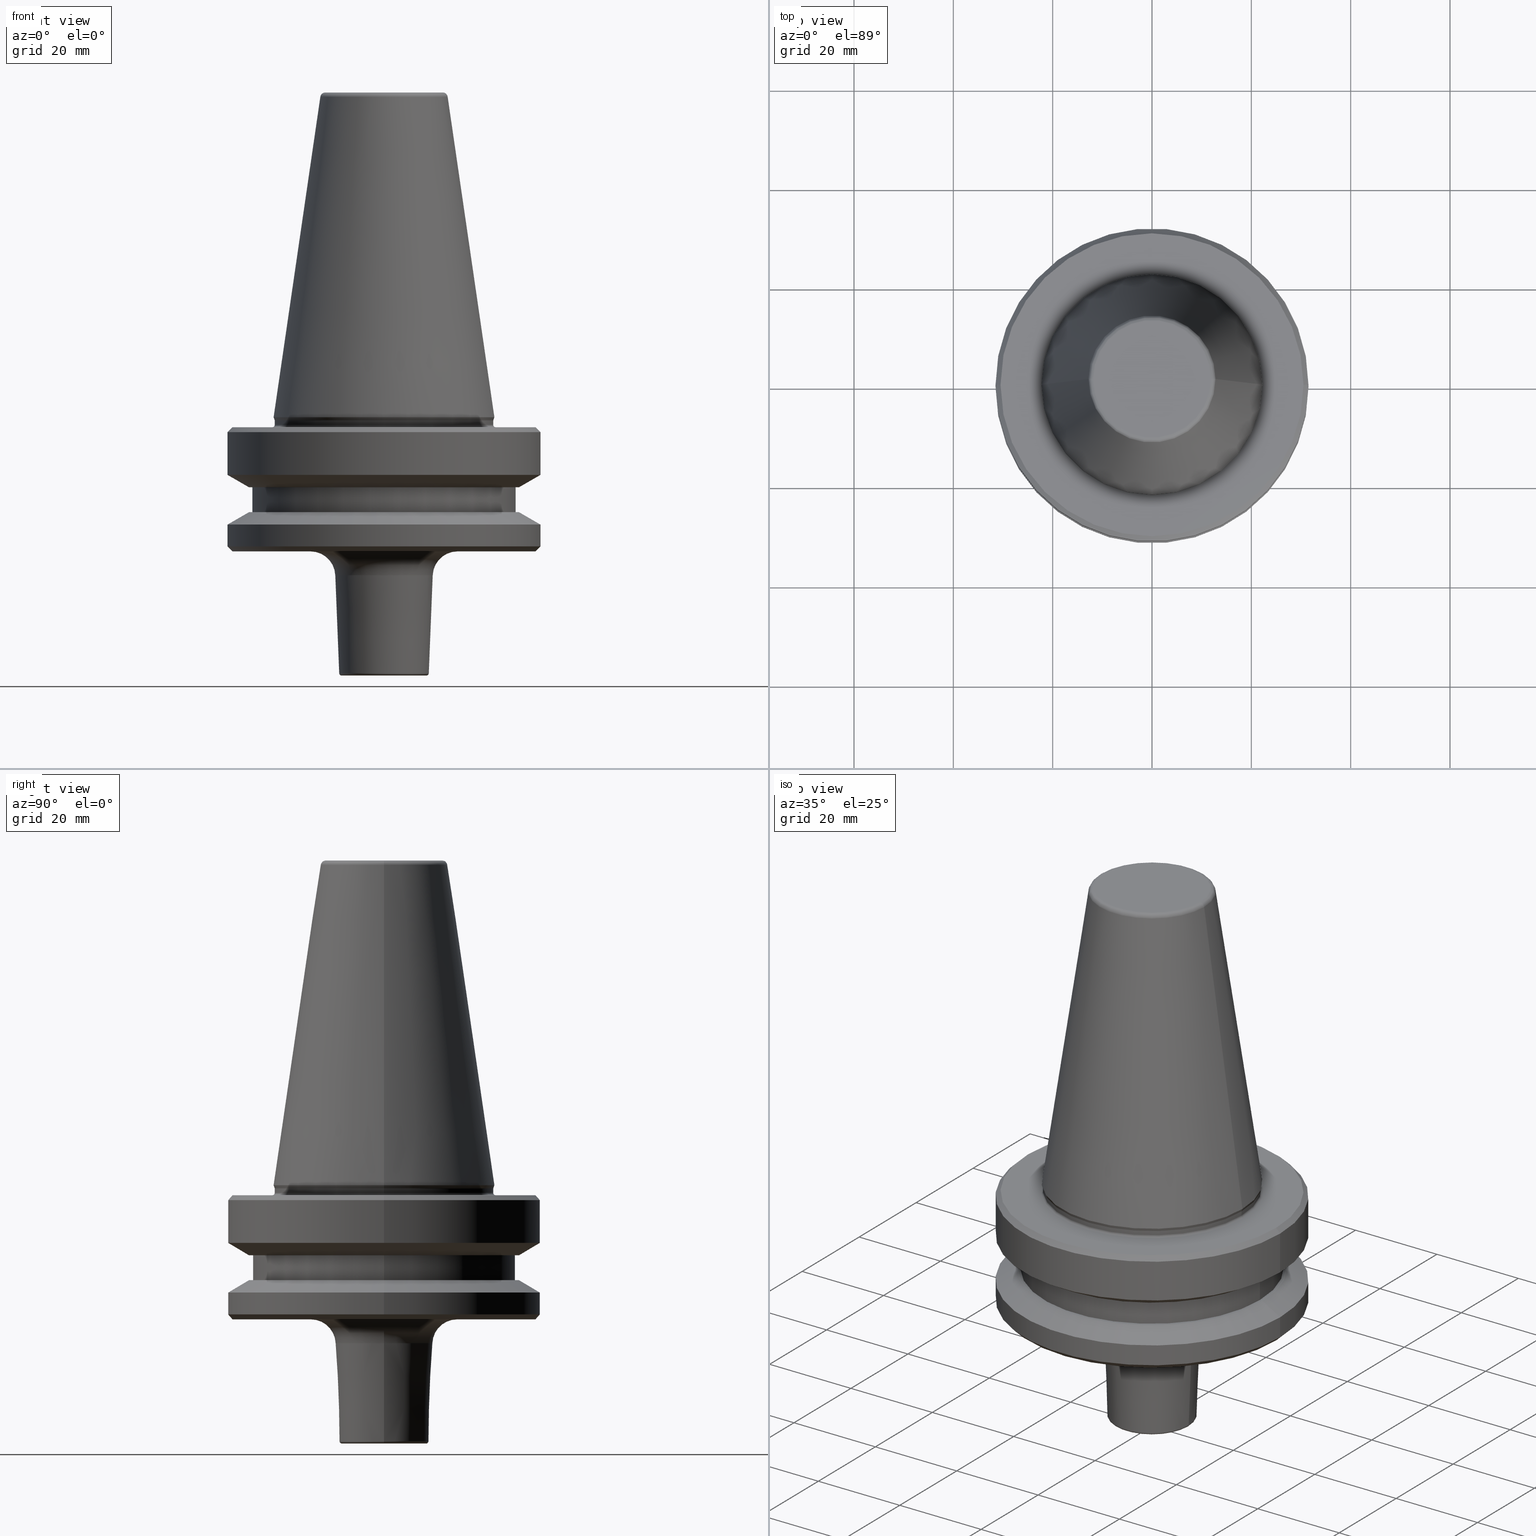
[diagram: canonical four-view strip — front | top / right | iso, engineering-drawing reading convention]
A machine part, canonical four-view strip (front | top / right | iso — engineering-drawing reading convention). The complete STEP part file that produces these views, byte-faithful:
ISO-10303-21;
HEADER;
FILE_DESCRIPTION (( 'STEP AP203' ),
    '1' );
FILE_NAME ('BT40 MCA10 025 AD+B-2.5G 25000 SL.STEP',
    '2019-05-24T09:56:07',
    ( '' ),
    ( '' ),
    'SwSTEP 2.0',
    'SolidWorks 2014',
    '' );
FILE_SCHEMA (( 'CONFIG_CONTROL_DESIGN' ));
ENDSEC;

DATA;
#1 = EDGE_CURVE ( 'NONE', #89, #408, #754, .T. ) ;
#2 = CARTESIAN_POINT ( 'NONE',  ( 0.0000000000000000000, 0.0000000000000000000, -84.50000000000068200 ) ) ;
#3 = CARTESIAN_POINT ( 'NONE',  ( 0.0000000000000000000, 0.0000000000000000000, -79.50000000000012800 ) ) ;
#4 = EDGE_LOOP ( 'NONE', ( #456, #503, #143, #786 ) ) ;
#5 = EDGE_LOOP ( 'NONE', ( #293, #224 ) ) ;
#6 = AXIS2_PLACEMENT_3D ( 'NONE', #3, #146, #809 ) ;
#7 = ORIENTED_EDGE ( 'NONE', *, *, #352, .T. ) ;
#8 = DIRECTION ( 'NONE',  ( -0.0000000000000000000, -0.0000000000000000000, 1.000000000000000000 ) ) ;
#9 = COORDINATED_UNIVERSAL_TIME_OFFSET ( 5, 30, .AHEAD. ) ;
#10 = ORIENTED_EDGE ( 'NONE', *, *, #770, .F. ) ;
#11 = ORIENTED_EDGE ( 'NONE', *, *, #407, .T. ) ;
#12 = DIRECTION ( 'NONE',  ( 0.0000000000000000000, 0.0000000000000000000, -1.000000000000000000 ) ) ;
#13 = DIRECTION ( 'NONE',  ( 0.03996803834887197700, 0.0000000000000000000, 0.9992009587217894900 ) ) ;
#14 = CC_DESIGN_PERSON_AND_ORGANIZATION_ASSIGNMENT ( #563, #570, ( #846 ) ) ;
#15 = CARTESIAN_POINT ( 'NONE',  ( 14.80399840127872000, 0.0000000000000000000, -92.40000000000806300 ) ) ;
#16 = FACE_OUTER_BOUND ( 'NONE', #4, .T. ) ;
#17 = CONICAL_SURFACE ( 'NONE', #365, 12.81220206925736900, 0.1448138077623198300 ) ;
#18 = EDGE_CURVE ( 'NONE', #368, #406, #124, .T. ) ;
#19 = SHAPE_DEFINITION_REPRESENTATION ( #638, #602 ) ;
#20 = APPLICATION_CONTEXT ( 'configuration controlled 3d designs of mechanical parts and assemblies' ) ;
#21 = CARTESIAN_POINT ( 'NONE',  ( 30.49999999999241900, 0.0000000000000000000, -92.40000000000803500 ) ) ;
#22 = VECTOR ( 'NONE', #291, 1000.000000000000000 ) ;
#23 = CIRCLE ( 'NONE', #759, 22.02412295168554100 ) ;
#24 = AXIS2_PLACEMENT_3D ( 'NONE', #169, #218, #373 ) ;
#25 = DIRECTION ( 'NONE',  ( -1.000000000000000000, 0.0000000000000000000, -0.0000000000000000000 ) ) ;
#26 = DIRECTION ( 'NONE',  ( 1.000000000000000000, 0.0000000000000000000, 0.0000000000000000000 ) ) ;
#27 = CARTESIAN_POINT ( 'NONE',  ( 22.02412295168553100, 0.0000000000000000000, -65.95190515433003500 ) ) ;
#28 = CARTESIAN_POINT ( 'NONE',  ( 0.0000000000000000000, 0.0000000000000000000, -65.40000000000057400 ) ) ;
#29 = CARTESIAN_POINT ( 'NONE',  ( 0.0000000000000000000, 0.0000000000000000000, -67.40000000000034700 ) ) ;
#30 = VERTEX_POINT ( 'NONE', #804 ) ;
#31 = CARTESIAN_POINT ( 'NONE',  ( 9.019200639233005700, 0.0000000000000000000, -116.9199840191827900 ) ) ;
#32 = ORIENTED_EDGE ( 'NONE', *, *, #415, .F. ) ;
#33 = CARTESIAN_POINT ( 'NONE',  ( 0.0000000000000000000, 0.0000000000000000000, -4.440892098500626200E-013 ) ) ;
#34 = LOCAL_TIME ( 15, 26, 7.000000000000000000, #250 ) ;
#35 = AXIS2_PLACEMENT_3D ( 'NONE', #204, #913, #656 ) ;
#36 = SECURITY_CLASSIFICATION_LEVEL ( 'unclassified' ) ;
#37 = DIRECTION ( 'NONE',  ( -0.0000000000000000000, -0.0000000000000000000, 1.000000000000000000 ) ) ;
#38 = ORIENTED_EDGE ( 'NONE', *, *, #589, .T. ) ;
#39 = ORIENTED_EDGE ( 'NONE', *, *, #954, .F. ) ;
#40 = DIRECTION ( 'NONE',  ( -0.0000000000000000000, -0.0000000000000000000, 1.000000000000000000 ) ) ;
#41 = CONICAL_SURFACE ( 'NONE', #249, 31.50000000000008500, 1.047197551196587000 ) ;
#42 = AXIS2_PLACEMENT_3D ( 'NONE', #223, #450, #956 ) ;
#43 = FACE_OUTER_BOUND ( 'NONE', #616, .T. ) ;
#44 = CARTESIAN_POINT ( 'NONE',  ( -9.019200639233005700, 1.104533519370446200E-015, -116.9199840191827900 ) ) ;
#45 = CIRCLE ( 'NONE', #35, 31.50000000000008500 ) ;
#46 = EDGE_CURVE ( 'NONE', #481, #147, #983, .T. ) ;
#47 = EDGE_CURVE ( 'NONE', #529, #723, #962, .T. ) ;
#48 = DIRECTION ( 'NONE',  ( -0.7071067811865487900, 8.659560562354948900E-017, 0.7071067811865463500 ) ) ;
#49 = LINE ( 'NONE', #930, #22 ) ;
#50 = LINE ( 'NONE', #435, #881 ) ;
#51 = ORIENTED_EDGE ( 'NONE', *, *, #954, .T. ) ;
#52 = CARTESIAN_POINT ( 'NONE',  ( 22.00000000000002100, 0.0000000000000000000, -66.08871321165987900 ) ) ;
#53 = ADVANCED_FACE ( 'NONE', ( #510 ), #485, .T. ) ;
#54 = EDGE_CURVE ( 'NONE', #30, #421, #706, .T. ) ;
#55 = CARTESIAN_POINT ( 'NONE',  ( 22.00000000000002100, 0.0000000000000000000, 6.357346922996331500 ) ) ;
#56 = DIRECTION ( 'NONE',  ( 1.000000000000000000, 0.0000000000000000000, 0.0000000000000000000 ) ) ;
#57 = AXIS2_PLACEMENT_3D ( 'NONE', #77, #556, #726 ) ;
#58 = ORIENTED_EDGE ( 'NONE', *, *, #46, .F. ) ;
#59 = ORIENTED_EDGE ( 'NONE', *, *, #905, .T. ) ;
#60 = ORGANIZATION ( 'UNSPECIFIED', 'UNSPECIFIED', '' ) ;
#61 = CARTESIAN_POINT ( 'NONE',  ( -31.50000000000008500, 3.857637417314172900E-015, -76.99985799368391800 ) ) ;
#62 = AXIS2_PLACEMENT_3D ( 'NONE', #283, #37, #817 ) ;
#63 = DIRECTION ( 'NONE',  ( -0.0000000000000000000, -0.0000000000000000000, 1.000000000000000000 ) ) ;
#64 = DIRECTION ( 'NONE',  ( 1.000000000000000000, 0.0000000000000000000, 0.0000000000000000000 ) ) ;
#65 = EDGE_LOOP ( 'NONE', ( #860, #228, #313, #737 ) ) ;
#66 = ORIENTED_EDGE ( 'NONE', *, *, #415, .T. ) ;
#67 = DIRECTION ( 'NONE',  ( -0.0000000000000000000, -0.0000000000000000000, 1.000000000000000000 ) ) ;
#68 = EDGE_LOOP ( 'NONE', ( #994, #814, #76, #372 ) ) ;
#69 = EDGE_CURVE ( 'NONE', #1013, #590, #328, .T. ) ;
#70 = CIRCLE ( 'NONE', #895, 0.9999999999999696900 ) ;
#71 = CARTESIAN_POINT ( 'NONE',  ( 30.49999999999997200, 3.735172737399423600E-015, -67.40000000000034700 ) ) ;
#72 = CIRCLE ( 'NONE', #867, 0.4999999999999449300 ) ;
#73 = SECURITY_CLASSIFICATION ( '', '', #36 ) ;
#74 = ADVANCED_FACE ( 'NONE', ( #931 ), #41, .T. ) ;
#75 = TOROIDAL_SURFACE ( 'NONE', #989, 22.49999999999996400, 0.4999999999999449300 ) ;
#76 = ORIENTED_EDGE ( 'NONE', *, *, #940, .T. ) ;
#77 = CARTESIAN_POINT ( 'NONE',  ( 22.49999999999996400, 0.0000000000000000000, -66.90000000000040400 ) ) ;
#78 = DIRECTION ( 'NONE',  ( 0.0000000000000000000, 0.0000000000000000000, -1.000000000000000000 ) ) ;
#79 = AXIS2_PLACEMENT_3D ( 'NONE', #892, #619, #943 ) ;
#80 = DIRECTION ( 'NONE',  ( 1.000000000000000000, 0.0000000000000000000, 0.0000000000000000000 ) ) ;
#81 = DIRECTION ( 'NONE',  ( 1.000000000000000000, 0.0000000000000000000, 0.0000000000000000000 ) ) ;
#82 = EDGE_LOOP ( 'NONE', ( #127, #499, #193, #400 ) ) ;
#83 = VERTEX_POINT ( 'NONE', #21 ) ;
#84 = CARTESIAN_POINT ( 'NONE',  ( 0.0000000000000000000, 0.0000000000000000000, -84.50000000000068200 ) ) ;
#85 = ORIENTED_EDGE ( 'NONE', *, *, #90, .F. ) ;
#86 = LINE ( 'NONE', #647, #110 ) ;
#87 = CARTESIAN_POINT ( 'NONE',  ( 0.0000000000000000000, 0.0000000000000000000, -116.9199840191827900 ) ) ;
#88 = EDGE_LOOP ( 'NONE', ( #582, #672 ) ) ;
#89 = VERTEX_POINT ( 'NONE', #234 ) ;
#90 = EDGE_CURVE ( 'NONE', #590, #477, #256, .T. ) ;
#91 = ORIENTED_EDGE ( 'NONE', *, *, #494, .T. ) ;
#92 = VERTEX_POINT ( 'NONE', #489 ) ;
#93 = AXIS2_PLACEMENT_3D ( 'NONE', #843, #496, #25 ) ;
#94 = ORIENTED_EDGE ( 'NONE', *, *, #350, .T. ) ;
#95 = CARTESIAN_POINT ( 'NONE',  ( 0.0000000000000000000, 0.0000000000000000000, -92.40000000000806300 ) ) ;
#96 = DIRECTION ( 'NONE',  ( 1.000000000000000000, 0.0000000000000000000, 0.0000000000000000000 ) ) ;
#97 = ADVANCED_FACE ( 'NONE', ( #459 ), #438, .T. ) ;
#98 = FACE_OUTER_BOUND ( 'NONE', #502, .T. ) ;
#99 = EDGE_CURVE ( 'NONE', #1015, #475, #649, .T. ) ;
#100 = DIRECTION ( 'NONE',  ( -0.0000000000000000000, -0.0000000000000000000, 1.000000000000000000 ) ) ;
#101 = VECTOR ( 'NONE', #1004, 1000.000000000000000 ) ;
#102 = AXIS2_PLACEMENT_3D ( 'NONE', #342, #888, #64 ) ;
#103 = FACE_OUTER_BOUND ( 'NONE', #173, .T. ) ;
#104 = APPROVAL_STATUS ( 'not_yet_approved' ) ;
#105 = APPROVAL_DATE_TIME ( #314, #241 ) ;
#106 = APPLICATION_PROTOCOL_DEFINITION ( 'international standard', 'config_control_design', 1994, #20 ) ;
#107 = DIRECTION ( 'NONE',  ( 1.000000000000000000, 0.0000000000000000000, 0.0000000000000000000 ) ) ;
#108 = DIRECTION ( 'NONE',  ( -0.0000000000000000000, -0.0000000000000000000, 1.000000000000000000 ) ) ;
#109 = EDGE_CURVE ( 'NONE', #529, #408, #677, .T. ) ;
#110 = VECTOR ( 'NONE', #214, 1000.000000000000000 ) ;
#111 = DIRECTION ( 'NONE',  ( 1.224646799147353200E-016, 1.000000000000000000, 0.0000000000000000000 ) ) ;
#112 = CONICAL_SURFACE ( 'NONE', #226, 31.50000000000008500, 1.047197551196587000 ) ;
#113 = ORIENTED_EDGE ( 'NONE', *, *, #276, .F. ) ;
#114 = AXIS2_PLACEMENT_3D ( 'NONE', #361, #336, #767 ) ;
#115 = ORIENTED_EDGE ( 'NONE', *, *, #670, .T. ) ;
#116 = DIRECTION ( 'NONE',  ( 0.0000000000000000000, 0.0000000000000000000, -1.000000000000000000 ) ) ;
#117 = DIRECTION ( 'NONE',  ( -0.0000000000000000000, -0.0000000000000000000, 1.000000000000000000 ) ) ;
#118 = DIRECTION ( 'NONE',  ( -1.000000000000000000, 0.0000000000000000000, 0.0000000000000000000 ) ) ;
#119 = ORIENTED_EDGE ( 'NONE', *, *, #973, .F. ) ;
#120 = ORIENTED_EDGE ( 'NONE', *, *, #967, .F. ) ;
#121 = CARTESIAN_POINT ( 'NONE',  ( -31.50000000000008500, 3.857637417314172900E-015, -91.40000000000037500 ) ) ;
#122 = DIRECTION ( 'NONE',  ( 1.000000000000000000, 0.0000000000000000000, 0.0000000000000000000 ) ) ;
#123 = AXIS2_PLACEMENT_3D ( 'NONE', #1041, #116, #247 ) ;
#124 = CIRCLE ( 'NONE', #275, 0.4999999999996951300 ) ;
#125 = PERSON_AND_ORGANIZATION_ROLE ( 'design_owner' ) ;
#126 = CARTESIAN_POINT ( 'NONE',  ( -22.49999999999996400, 2.755455298081540400E-015, -67.40000000000034700 ) ) ;
#127 = ORIENTED_EDGE ( 'NONE', *, *, #841, .T. ) ;
#128 = VECTOR ( 'NONE', #277, 1000.000000000000000 ) ;
#129 = CIRCLE ( 'NONE', #329, 0.4999999999996951300 ) ;
#130 = CARTESIAN_POINT ( 'NONE',  ( 0.0000000000000000000, 0.0000000000000000000, -84.50000000000068200 ) ) ;
#131 = DIRECTION ( 'NONE',  ( 1.000000000000000000, 0.0000000000000000000, 0.0000000000000000000 ) ) ;
#132 = APPROVAL_PERSON_ORGANIZATION ( #337, #241, #946 ) ;
#133 = CC_DESIGN_PERSON_AND_ORGANIZATION_ASSIGNMENT ( #362, #857, ( #73 ) ) ;
#134 = ADVANCED_FACE ( 'NONE', ( #98 ), #620, .T. ) ;
#135 = DIRECTION ( 'NONE',  ( -0.0000000000000000000, -0.0000000000000000000, 1.000000000000000000 ) ) ;
#136 = ORIENTED_EDGE ( 'NONE', *, *, #309, .T. ) ;
#137 = DIRECTION ( 'NONE',  ( -0.0000000000000000000, -0.0000000000000000000, 1.000000000000000000 ) ) ;
#138 = DIRECTION ( 'NONE',  ( 1.000000000000000000, 0.0000000000000000000, 0.0000000000000000000 ) ) ;
#139 = CIRCLE ( 'NONE', #445, 30.49999999999241900 ) ;
#140 = DIRECTION ( 'NONE',  ( 1.000000000000000000, 0.0000000000000000000, 0.0000000000000000000 ) ) ;
#141 = DIRECTION ( 'NONE',  ( 1.000000000000000000, 0.0000000000000000000, 0.0000000000000000000 ) ) ;
#142 = TOROIDAL_SURFACE ( 'NONE', #377, 14.80399840127872000, 4.999999999999993800 ) ;
#143 = ORIENTED_EDGE ( 'NONE', *, *, #306, .T. ) ;
#144 = CARTESIAN_POINT ( 'NONE',  ( 0.0000000000000000000, 0.0000000000000000000, -66.08871321165987900 ) ) ;
#145 = ADVANCED_FACE ( 'NONE', ( #16 ), #877, .T. ) ;
#146 = DIRECTION ( 'NONE',  ( -0.0000000000000000000, -0.0000000000000000000, 1.000000000000000000 ) ) ;
#147 = VERTEX_POINT ( 'NONE', #259 ) ;
#148 = DIRECTION ( 'NONE',  ( -0.0000000000000000000, -0.0000000000000000000, 1.000000000000000000 ) ) ;
#149 = DIRECTION ( 'NONE',  ( -0.8660254037844332700, 0.0000000000000000000, -0.5000000000000093300 ) ) ;
#150 = AXIS2_PLACEMENT_3D ( 'NONE', #885, #317, #735 ) ;
#151 = ORIENTED_EDGE ( 'NONE', *, *, #713, .F. ) ;
#152 = VECTOR ( 'NONE', #48, 1000.000000000000000 ) ;
#153 = COORDINATED_UNIVERSAL_TIME_OFFSET ( 5, 30, .AHEAD. ) ;
#154 = DIRECTION ( 'NONE',  ( 1.000000000000000000, 0.0000000000000000000, 0.0000000000000000000 ) ) ;
#155 = ORIENTED_EDGE ( 'NONE', *, *, #164, .T. ) ;
#156 = EDGE_CURVE ( 'NONE', #425, #872, #239, .T. ) ;
#157 = CARTESIAN_POINT ( 'NONE',  ( 0.0000000000000000000, 0.0000000000000000000, -66.08871321165987900 ) ) ;
#158 = CARTESIAN_POINT ( 'NONE',  ( 0.0000000000000000000, 3.824715381154525800E-013, -117.4000000000080600 ) ) ;
#159 = EDGE_LOOP ( 'NONE', ( #341, #304, #927, #893 ) ) ;
#160 = CIRCLE ( 'NONE', #1022, 4.999999999999993800 ) ;
#161 = DIRECTION ( 'NONE',  ( 0.0000000000000000000, -0.0000000000000000000, 1.000000000000000000 ) ) ;
#162 = CARTESIAN_POINT ( 'NONE',  ( 12.81220206925736900, 2.145409868259749100E-015, -0.8556918111122247000 ) ) ;
#163 = VECTOR ( 'NONE', #1048, 1000.000000000000000 ) ;
#164 = EDGE_CURVE ( 'NONE', #271, #30, #70, .T. ) ;
#165 = ORIENTED_EDGE ( 'NONE', *, *, #648, .T. ) ;
#166 = DIRECTION ( 'NONE',  ( 1.000000000000000000, 0.0000000000000000000, 0.0000000000000000000 ) ) ;
#167 = DESIGN_CONTEXT ( 'detailed design', #20, 'design' ) ;
#168 = AXIS2_PLACEMENT_3D ( 'NONE', #816, #100, #131 ) ;
#169 = CARTESIAN_POINT ( 'NONE',  ( 0.0000000000000000000, 0.0000000000000000000, -68.40000000000046000 ) ) ;
#170 = ORIENTED_EDGE ( 'NONE', *, *, #869, .F. ) ;
#171 = DIRECTION ( 'NONE',  ( -0.0000000000000000000, -0.0000000000000000000, 1.000000000000000000 ) ) ;
#172 = AXIS2_PLACEMENT_3D ( 'NONE', #716, #993, #81 ) ;
#173 = EDGE_LOOP ( 'NONE', ( #465, #630, #642, #815 ) ) ;
#174 = LINE ( 'NONE', #799, #1009 ) ;
#175 = CARTESIAN_POINT ( 'NONE',  ( -14.80399840127872000, 1.812966925670851800E-015, -92.40000000000806300 ) ) ;
#176 = DATE_AND_TIME ( #382, #585 ) ;
#177 = CARTESIAN_POINT ( 'NONE',  ( 0.0000000000000000000, 0.0000000000000000000, -116.9199840191827900 ) ) ;
#178 = PLANE ( 'NONE',  #258 ) ;
#179 = ORIENTED_EDGE ( 'NONE', *, *, #99, .F. ) ;
#180 = EDGE_LOOP ( 'NONE', ( #524, #296, #553, #588 ) ) ;
#181 = ORIENTED_EDGE ( 'NONE', *, *, #1042, .T. ) ;
#182 = CC_DESIGN_DATE_AND_TIME_ASSIGNMENT ( #541, #292, ( #73 ) ) ;
#183 =( NAMED_UNIT ( * ) SI_UNIT ( $, .STERADIAN. ) SOLID_ANGLE_UNIT ( ) );
#184 = EDGE_CURVE ( 'NONE', #219, #917, #904, .T. ) ;
#185 = FACE_OUTER_BOUND ( 'NONE', #747, .T. ) ;
#186 = EDGE_LOOP ( 'NONE', ( #566, #348, #953, #449 ) ) ;
#187 = CONICAL_SURFACE ( 'NONE', #622, 31.50000000000008500, 1.047197551196597400 ) ;
#188 = APPROVAL_ROLE ( '' ) ;
#189 = ADVANCED_FACE ( 'NONE', ( #411 ), #595, .T. ) ;
#190 = CIRCLE ( 'NONE', #57, 0.4999999999999449300 ) ;
#191 = AXIS2_PLACEMENT_3D ( 'NONE', #519, #721, #795 ) ;
#192 = FACE_OUTER_BOUND ( 'NONE', #1037, .T. ) ;
#193 = ORIENTED_EDGE ( 'NONE', *, *, #751, .F. ) ;
#194 = CARTESIAN_POINT ( 'NONE',  ( 0.0000000000000000000, 0.0000000000000000000, -97.20015980826369200 ) ) ;
#195 = DIRECTION ( 'NONE',  ( -0.0000000000000000000, -0.0000000000000000000, 1.000000000000000000 ) ) ;
#196 = EDGE_LOOP ( 'NONE', ( #567, #179 ) ) ;
#197 = DIRECTION ( 'NONE',  ( -0.0000000000000000000, -0.0000000000000000000, 1.000000000000000000 ) ) ;
#198 = CARTESIAN_POINT ( 'NONE',  ( 8.519600159872416300, 0.0000000000000000000, -116.9000000000083600 ) ) ;
#199 = DIRECTION ( 'NONE',  ( 1.000000000000000000, 0.0000000000000000000, 0.0000000000000000000 ) ) ;
#200 = ORIENTED_EDGE ( 'NONE', *, *, #264, .T. ) ;
#201 = DIRECTION ( 'NONE',  ( 1.000000000000000000, 0.0000000000000000000, 0.0000000000000000000 ) ) ;
#202 =( GEOMETRIC_REPRESENTATION_CONTEXT ( 3 ) GLOBAL_UNCERTAINTY_ASSIGNED_CONTEXT ( ( #866 ) ) GLOBAL_UNIT_ASSIGNED_CONTEXT ( ( #755, #468, #183 ) ) REPRESENTATION_CONTEXT ( 'NONE', 'WORKASPACE' ) );
#203 = PERSON_AND_ORGANIZATION ( #683, #60 ) ;
#204 = CARTESIAN_POINT ( 'NONE',  ( 0.0000000000000000000, 0.0000000000000000000, -76.99985799368391800 ) ) ;
#205 = EDGE_CURVE ( 'NONE', #475, #1015, #1043, .T. ) ;
#206 = ORIENTED_EDGE ( 'NONE', *, *, #366, .T. ) ;
#207 = EDGE_LOOP ( 'NONE', ( #636, #750, #91, #655 ) ) ;
#208 = DIRECTION ( 'NONE',  ( 1.000000000000000000, 0.0000000000000000000, 0.0000000000000000000 ) ) ;
#209 = ADVANCED_FACE ( 'NONE', ( #821 ), #1018, .T. ) ;
#210 = DIRECTION ( 'NONE',  ( -1.000000000000000000, 0.0000000000000000000, 0.0000000000000000000 ) ) ;
#211 = AXIS2_PLACEMENT_3D ( 'NONE', #694, #148, #371 ) ;
#212 = TOROIDAL_SURFACE ( 'NONE', #315, 11.82266927716813000, 0.9999999999999696900 ) ;
#213 = CIRCLE ( 'NONE', #797, 22.49999999999996400 ) ;
#214 = DIRECTION ( 'NONE',  ( 0.1443081888881795900, 1.767265616126607700E-017, -0.9895327920891826600 ) ) ;
#215 = CIRCLE ( 'NONE', #718, 9.019200639233005700 ) ;
#216 = CIRCLE ( 'NONE', #42, 14.80399840127872000 ) ;
#217 = DIRECTION ( 'NONE',  ( -0.0000000000000000000, -0.0000000000000000000, 1.000000000000000000 ) ) ;
#218 = DIRECTION ( 'NONE',  ( -0.0000000000000000000, -0.0000000000000000000, 1.000000000000000000 ) ) ;
#219 = VERTEX_POINT ( 'NONE', #903 ) ;
#220 = APPROVAL_STATUS ( 'not_yet_approved' ) ;
#221 = DIRECTION ( 'NONE',  ( -0.0000000000000000000, -0.0000000000000000000, 1.000000000000000000 ) ) ;
#222 = CARTESIAN_POINT ( 'NONE',  ( 0.0000000000000000000, 0.0000000000000000000, -0.8556918111122247000 ) ) ;
#223 = CARTESIAN_POINT ( 'NONE',  ( 0.0000000000000000000, 0.0000000000000000000, -92.40000000000806300 ) ) ;
#224 = ORIENTED_EDGE ( 'NONE', *, *, #366, .F. ) ;
#225 = DIRECTION ( 'NONE',  ( 1.000000000000000000, 0.0000000000000000000, 0.0000000000000000000 ) ) ;
#226 = AXIS2_PLACEMENT_3D ( 'NONE', #254, #12, #210 ) ;
#227 = DIRECTION ( 'NONE',  ( 0.0000000000000000000, 0.0000000000000000000, -1.000000000000000000 ) ) ;
#228 = ORIENTED_EDGE ( 'NONE', *, *, #99, .T. ) ;
#229 = CARTESIAN_POINT ( 'NONE',  ( 0.0000000000000000000, 0.0000000000000000000, -67.40000000000034700 ) ) ;
#230 = ADVANCED_FACE ( 'NONE', ( #185 ), #760, .T. ) ;
#231 = PERSON_AND_ORGANIZATION ( #683, #60 ) ;
#232 = AXIS2_PLACEMENT_3D ( 'NONE', #194, #964, #381 ) ;
#233 = CARTESIAN_POINT ( 'NONE',  ( 0.0000000000000000000, 0.0000000000000000000, -67.40000000000034700 ) ) ;
#234 = CARTESIAN_POINT ( 'NONE',  ( 22.00000000000002100, 0.0000000000000000000, -66.90000000000040400 ) ) ;
#235 = MANIFOLD_SOLID_BREP ( 'Revolve1', #321 ) ;
#236 = EDGE_LOOP ( 'NONE', ( #94, #925, #958, #278 ) ) ;
#237 = ORIENTED_EDGE ( 'NONE', *, *, #276, .T. ) ;
#238 = CARTESIAN_POINT ( 'NONE',  ( -22.00000000000002100, 2.694222958124179600E-015, -66.08871321165987900 ) ) ;
#239 = CIRCLE ( 'NONE', #783, 30.49999999999997200 ) ;
#240 = DIRECTION ( 'NONE',  ( 1.224646799147353200E-016, 1.000000000000000000, 0.0000000000000000000 ) ) ;
#241 = APPROVAL ( #220, 'UNSPECIFIED' ) ;
#242 = CIRCLE ( 'NONE', #569, 22.00000000000002100 ) ;
#243 = TOROIDAL_SURFACE ( 'NONE', #778, 8.519600159872416300, 0.4999999999996953500 ) ;
#244 = CIRCLE ( 'NONE', #874, 22.02412295168554100 ) ;
#245 = DIRECTION ( 'NONE',  ( -0.0000000000000000000, -0.0000000000000000000, 1.000000000000000000 ) ) ;
#246 = AXIS2_PLACEMENT_3D ( 'NONE', #856, #295, #138 ) ;
#247 = DIRECTION ( 'NONE',  ( -1.000000000000000000, 0.0000000000000000000, 0.0000000000000000000 ) ) ;
#248 = ORIENTED_EDGE ( 'NONE', *, *, #681, .T. ) ;
#249 = AXIS2_PLACEMENT_3D ( 'NONE', #784, #865, #118 ) ;
#250 = COORDINATED_UNIVERSAL_TIME_OFFSET ( 5, 30, .AHEAD. ) ;
#251 = ORIENTED_EDGE ( 'NONE', *, *, #740, .F. ) ;
#252 = ORIENTED_EDGE ( 'NONE', *, *, #905, .F. ) ;
#253 = CARTESIAN_POINT ( 'NONE',  ( -26.50000000000019200, 3.245314017740509400E-015, -79.50000000000012800 ) ) ;
#254 = CARTESIAN_POINT ( 'NONE',  ( 0.0000000000000000000, 0.0000000000000000000, -87.00014200631733300 ) ) ;
#255 = CARTESIAN_POINT ( 'NONE',  ( 0.0000000000000000000, 0.0000000000000000000, -65.40000000000057400 ) ) ;
#256 = CIRCLE ( 'NONE', #581, 31.50000000000008500 ) ;
#257 = CIRCLE ( 'NONE', #462, 27.16962701892256100 ) ;
#258 = AXIS2_PLACEMENT_3D ( 'NONE', #404, #301, #378 ) ;
#259 = CARTESIAN_POINT ( 'NONE',  ( -31.50000000000008500, 3.857637417314172900E-015, -68.40000000000046000 ) ) ;
#260 = CIRCLE ( 'NONE', #498, 26.50000000000019200 ) ;
#261 = CIRCLE ( 'NONE', #707, 30.49999999999241900 ) ;
#262 = EDGE_LOOP ( 'NONE', ( #287, #571, #85, #794 ) ) ;
#263 = ORIENTED_EDGE ( 'NONE', *, *, #90, .T. ) ;
#264 = EDGE_CURVE ( 'NONE', #917, #219, #390, .T. ) ;
#265 = AXIS2_PLACEMENT_3D ( 'NONE', #33, #919, #864 ) ;
#266 = CARTESIAN_POINT ( 'NONE',  ( 0.0000000000000000000, 0.0000000000000000000, 6.357346922996331500 ) ) ;
#267 = ORIENTED_EDGE ( 'NONE', *, *, #1003, .T. ) ;
#268 = DIRECTION ( 'NONE',  ( -0.0000000000000000000, -0.0000000000000000000, 1.000000000000000000 ) ) ;
#269 = EDGE_CURVE ( 'NONE', #420, #686, #848, .T. ) ;
#270 = EDGE_CURVE ( 'NONE', #984, #420, #539, .T. ) ;
#271 = VERTEX_POINT ( 'NONE', #918 ) ;
#272 = AXIS2_PLACEMENT_3D ( 'NONE', #95, #437, #934 ) ;
#273 = CARTESIAN_POINT ( 'NONE',  ( 0.0000000000000000000, 0.0000000000000000000, -84.50000000000068200 ) ) ;
#274 = DIRECTION ( 'NONE',  ( 0.0000000000000000000, -1.000000000000000000, 0.0000000000000000000 ) ) ;
#275 = AXIS2_PLACEMENT_3D ( 'NONE', #748, #297, #727 ) ;
#276 = EDGE_CURVE ( 'NONE', #508, #481, #796, .T. ) ;
#277 = DIRECTION ( 'NONE',  ( -0.0000000000000000000, -0.0000000000000000000, 1.000000000000000000 ) ) ;
#278 = ORIENTED_EDGE ( 'NONE', *, *, #940, .F. ) ;
#279 = ORIENTED_EDGE ( 'NONE', *, *, #591, .F. ) ;
#280 = AXIS2_PLACEMENT_3D ( 'NONE', #704, #493, #527 ) ;
#281 = ORIENTED_EDGE ( 'NONE', *, *, #899, .F. ) ;
#282 = DIRECTION ( 'NONE',  ( -0.0000000000000000000, -0.0000000000000000000, 1.000000000000000000 ) ) ;
#283 = CARTESIAN_POINT ( 'NONE',  ( 0.0000000000000000000, 0.0000000000000000000, 6.357346922996331500 ) ) ;
#284 = VECTOR ( 'NONE', #289, 1000.000000000000000 ) ;
#285 = FACE_OUTER_BOUND ( 'NONE', #696, .T. ) ;
#286 = TOROIDAL_SURFACE ( 'NONE', #535, 22.40000000000019800, 0.4000000000001546800 ) ;
#287 = ORIENTED_EDGE ( 'NONE', *, *, #184, .T. ) ;
#288 = CC_DESIGN_APPROVAL ( #241, ( #73 ) ) ;
#289 = DIRECTION ( 'NONE',  ( 0.8660254037844332700, 1.060575238724900300E-016, -0.5000000000000093300 ) ) ;
#290 = ORIENTED_EDGE ( 'NONE', *, *, #841, .F. ) ;
#291 = DIRECTION ( 'NONE',  ( -0.0000000000000000000, -0.0000000000000000000, 1.000000000000000000 ) ) ;
#292 = DATE_TIME_ROLE ( 'classification_date' ) ;
#293 = ORIENTED_EDGE ( 'NONE', *, *, #675, .F. ) ;
#294 = DIRECTION ( 'NONE',  ( 1.000000000000000000, 0.0000000000000000000, 0.0000000000000000000 ) ) ;
#295 = DIRECTION ( 'NONE',  ( 0.0000000000000000000, -0.0000000000000000000, 1.000000000000000000 ) ) ;
#296 = ORIENTED_EDGE ( 'NONE', *, *, #407, .F. ) ;
#297 = DIRECTION ( 'NONE',  ( 1.224646799147353200E-016, 1.000000000000000000, 0.0000000000000000000 ) ) ;
#298 = VECTOR ( 'NONE', #393, 1000.000000000000000 ) ;
#299 = DIRECTION ( 'NONE',  ( 1.000000000000000000, 0.0000000000000000000, 0.0000000000000000000 ) ) ;
#300 = ORIENTED_EDGE ( 'NONE', *, *, #886, .F. ) ;
#301 = DIRECTION ( 'NONE',  ( 0.0000000000000000000, 0.0000000000000000000, -1.000000000000000000 ) ) ;
#302 = DIRECTION ( 'NONE',  ( 0.0000000000000000000, 0.0000000000000000000, -1.000000000000000000 ) ) ;
#303 = ORIENTED_EDGE ( 'NONE', *, *, #763, .T. ) ;
#304 = ORIENTED_EDGE ( 'NONE', *, *, #763, .F. ) ;
#305 = EDGE_LOOP ( 'NONE', ( #39, #882, #263, #793 ) ) ;
#306 = EDGE_CURVE ( 'NONE', #92, #984, #129, .T. ) ;
#307 = AXIS2_PLACEMENT_3D ( 'NONE', #266, #546, #739 ) ;
#308 = VECTOR ( 'NONE', #383, 1000.000000000000000 ) ;
#309 = EDGE_CURVE ( 'NONE', #406, #686, #732, .T. ) ;
#310 = ADVANCED_FACE ( 'NONE', ( #986 ), #710, .T. ) ;
#311 = CYLINDRICAL_SURFACE ( 'NONE', #700, 22.00000000000002100 ) ;
#312 = FACE_OUTER_BOUND ( 'NONE', #427, .T. ) ;
#313 = ORIENTED_EDGE ( 'NONE', *, *, #886, .T. ) ;
#314 = DATE_AND_TIME ( #516, #734 ) ;
#315 = AXIS2_PLACEMENT_3D ( 'NONE', #577, #533, #861 ) ;
#316 = DIRECTION ( 'NONE',  ( -0.0000000000000000000, -0.0000000000000000000, 1.000000000000000000 ) ) ;
#317 = DIRECTION ( 'NONE',  ( 1.224646799147353200E-016, 1.000000000000000000, 0.0000000000000000000 ) ) ;
#318 = DIRECTION ( 'NONE',  ( -0.0000000000000000000, -0.0000000000000000000, 1.000000000000000000 ) ) ;
#319 = FACE_OUTER_BOUND ( 'NONE', #505, .T. ) ;
#320 = CIRCLE ( 'NONE', #272, 14.80399840127872000 ) ;
#321 = CLOSED_SHELL ( 'NONE', ( #327, #714, #451, #480, #134, #333, #948, #426, #483, #53, #987, #310, #74, #189, #772, #1027, #823, #644, #548, #631, #818, #660, #209, #433, #515, #1053, #431, #1036, #405, #736, #906, #565, #230, #729, #447, #345, #145, #97 ) ) ;
#322 = ORIENTED_EDGE ( 'NONE', *, *, #47, .F. ) ;
#323 = ORIENTED_EDGE ( 'NONE', *, *, #309, .F. ) ;
#324 = AXIS2_PLACEMENT_3D ( 'NONE', #486, #356, #299 ) ;
#325 = ORIENTED_EDGE ( 'NONE', *, *, #360, .F. ) ;
#326 = ORIENTED_EDGE ( 'NONE', *, *, #629, .F. ) ;
#327 = ADVANCED_FACE ( 'NONE', ( #312 ), #910, .T. ) ;
#328 = LINE ( 'NONE', #594, #284 ) ;
#329 = AXIS2_PLACEMENT_3D ( 'NONE', #198, #353, #78 ) ;
#330 = CARTESIAN_POINT ( 'NONE',  ( -26.50000000000019200, 3.245314017740509400E-015, 6.357346922996331500 ) ) ;
#331 = CARTESIAN_POINT ( 'NONE',  ( 0.0000000000000000000, 0.0000000000000000000, -65.40000000000057400 ) ) ;
#332 = EDGE_LOOP ( 'NONE', ( #303, #66, #633, #698 ) ) ;
#333 = ADVANCED_FACE ( 'NONE', ( #103 ), #286, .F. ) ;
#334 = FACE_OUTER_BOUND ( 'NONE', #332, .T. ) ;
#335 = VECTOR ( 'NONE', #13, 999.9999999999998900 ) ;
#336 = DIRECTION ( 'NONE',  ( -0.0000000000000000000, -0.0000000000000000000, 1.000000000000000000 ) ) ;
#337 = PERSON_AND_ORGANIZATION ( #683, #60 ) ;
#338 = VERTEX_POINT ( 'NONE', #162 ) ;
#339 = CC_DESIGN_SECURITY_CLASSIFICATION ( #73, ( #846 ) ) ;
#340 = CARTESIAN_POINT ( 'NONE',  ( 0.0000000000000000000, 0.0000000000000000000, 0.0000000000000000000 ) ) ;
#341 = ORIENTED_EDGE ( 'NONE', *, *, #1012, .F. ) ;
#342 = CARTESIAN_POINT ( 'NONE',  ( 0.0000000000000000000, 0.0000000000000000000, -79.50000000000012800 ) ) ;
#343 = FACE_OUTER_BOUND ( 'NONE', #5, .T. ) ;
#344 = AXIS2_PLACEMENT_3D ( 'NONE', #472, #1005, #479 ) ;
#345 = ADVANCED_FACE ( 'NONE', ( #937 ), #520, .T. ) ;
#346 = CARTESIAN_POINT ( 'NONE',  ( 0.0000000000000000000, 0.0000000000000000000, -97.40000000000804900 ) ) ;
#347 = VECTOR ( 'NONE', #578, 1000.000000000000000 ) ;
#348 = ORIENTED_EDGE ( 'NONE', *, *, #899, .T. ) ;
#349 = ORIENTED_EDGE ( 'NONE', *, *, #826, .F. ) ;
#350 = EDGE_CURVE ( 'NONE', #358, #805, #968, .T. ) ;
#351 = CARTESIAN_POINT ( 'NONE',  ( 31.50000000000008500, 0.0000000000000000000, -68.40000000000046000 ) ) ;
#352 = EDGE_CURVE ( 'NONE', #425, #147, #684, .T. ) ;
#353 = DIRECTION ( 'NONE',  ( 0.0000000000000000000, -1.000000000000000000, 0.0000000000000000000 ) ) ;
#354 = ORIENTED_EDGE ( 'NONE', *, *, #709, .F. ) ;
#355 = DIRECTION ( 'NONE',  ( -0.0000000000000000000, -0.0000000000000000000, 1.000000000000000000 ) ) ;
#356 = DIRECTION ( 'NONE',  ( -0.0000000000000000000, -0.0000000000000000000, 1.000000000000000000 ) ) ;
#357 = DIRECTION ( 'NONE',  ( 0.0000000000000000000, 0.0000000000000000000, -1.000000000000000000 ) ) ;
#358 = VERTEX_POINT ( 'NONE', #762 ) ;
#359 = LINE ( 'NONE', #441, #152 ) ;
#360 = EDGE_CURVE ( 'NONE', #554, #691, #50, .T. ) ;
#361 = CARTESIAN_POINT ( 'NONE',  ( 0.0000000000000000000, 0.0000000000000000000, -91.40000000000037500 ) ) ;
#362 = PERSON_AND_ORGANIZATION ( #683, #60 ) ;
#363 = ORIENTED_EDGE ( 'NONE', *, *, #785, .T. ) ;
#364 = DIRECTION ( 'NONE',  ( 0.8660254037844383700, 0.0000000000000000000, 0.5000000000000003300 ) ) ;
#365 = AXIS2_PLACEMENT_3D ( 'NONE', #950, #227, #446 ) ;
#366 = EDGE_CURVE ( 'NONE', #432, #83, #261, .T. ) ;
#367 = DIRECTION ( 'NONE',  ( 1.000000000000000000, 0.0000000000000000000, 0.0000000000000000000 ) ) ;
#368 = VERTEX_POINT ( 'NONE', #439 ) ;
#369 = CIRCLE ( 'NONE', #912, 12.81220206925736900 ) ;
#370 = LINE ( 'NONE', #773, #951 ) ;
#371 = DIRECTION ( 'NONE',  ( 1.000000000000000000, 0.0000000000000000000, 0.0000000000000000000 ) ) ;
#372 = ORIENTED_EDGE ( 'NONE', *, *, #1028, .F. ) ;
#373 = DIRECTION ( 'NONE',  ( 1.000000000000000000, 0.0000000000000000000, 0.0000000000000000000 ) ) ;
#374 = CARTESIAN_POINT ( 'NONE',  ( 0.0000000000000000000, 0.0000000000000000000, -65.95190515433003500 ) ) ;
#375 = CARTESIAN_POINT ( 'NONE',  ( -22.00000000000002100, 2.724839128102860200E-015, -66.90000000000040400 ) ) ;
#376 = CARTESIAN_POINT ( 'NONE',  ( 0.0000000000000000000, 0.0000000000000000000, -116.9000000000083600 ) ) ;
#377 = AXIS2_PLACEMENT_3D ( 'NONE', #387, #63, #122 ) ;
#378 = DIRECTION ( 'NONE',  ( -1.000000000000000000, 0.0000000000000000000, -0.0000000000000000000 ) ) ;
#379 = CARTESIAN_POINT ( 'NONE',  ( 0.0000000000000000000, 0.0000000000000000000, -97.20015980826369200 ) ) ;
#380 = ORIENTED_EDGE ( 'NONE', *, *, #54, .F. ) ;
#381 = DIRECTION ( 'NONE',  ( 1.000000000000000000, 0.0000000000000000000, 0.0000000000000000000 ) ) ;
#382 = CALENDAR_DATE ( 2019, 24, 5 ) ;
#383 = DIRECTION ( 'NONE',  ( 0.3420201433262311000, 0.0000000000000000000, 0.9396926207857037000 ) ) ;
#384 = PLANE ( 'NONE',  #102 ) ;
#385 = ORIENTED_EDGE ( 'NONE', *, *, #669, .T. ) ;
#386 = EDGE_LOOP ( 'NONE', ( #504, #1008, #7, #862 ) ) ;
#387 = CARTESIAN_POINT ( 'NONE',  ( 0.0000000000000000000, 0.0000000000000000000, -97.40000000000804900 ) ) ;
#388 = CARTESIAN_POINT ( 'NONE',  ( -31.50000000000008500, 3.857637417314172900E-015, -76.99985799368391800 ) ) ;
#389 = PRODUCT_RELATED_PRODUCT_CATEGORY ( 'detail', '', ( #849 ) ) ;
#390 = CIRCLE ( 'NONE', #1006, 31.50000000000008500 ) ;
#391 = EDGE_LOOP ( 'NONE', ( #354, #464, #1032, #929 ) ) ;
#392 = FACE_BOUND ( 'NONE', #88, .T. ) ;
#393 = DIRECTION ( 'NONE',  ( -0.0000000000000000000, -0.0000000000000000000, 1.000000000000000000 ) ) ;
#394 = CYLINDRICAL_SURFACE ( 'NONE', #952, 22.00000000000002100 ) ;
#395 = CIRCLE ( 'NONE', #550, 4.999999999999990200 ) ;
#396 = AXIS2_PLACEMENT_3D ( 'NONE', #1035, #161, #154 ) ;
#397 = APPROVAL_ROLE ( '' ) ;
#398 = CARTESIAN_POINT ( 'NONE',  ( 0.0000000000000000000, 0.0000000000000000000, -66.08871321165987900 ) ) ;
#399 = CARTESIAN_POINT ( 'NONE',  ( 30.49999999999997200, 3.796405077356798300E-015, -67.40000000000034700 ) ) ;
#400 = ORIENTED_EDGE ( 'NONE', *, *, #306, .F. ) ;
#401 = CARTESIAN_POINT ( 'NONE',  ( 0.0000000000000000000, 0.0000000000000000000, -68.40000000000046000 ) ) ;
#402 = DATE_AND_TIME ( #613, #842 ) ;
#403 = DIRECTION ( 'NONE',  ( 1.000000000000000000, 0.0000000000000000000, 0.0000000000000000000 ) ) ;
#404 = CARTESIAN_POINT ( 'NONE',  ( 0.0000000000000000000, 0.0000000000000000000, -4.440892098500626200E-013 ) ) ;
#405 = ADVANCED_FACE ( 'NONE', ( #490 ), #654, .F. ) ;
#406 = VERTEX_POINT ( 'NONE', #44 ) ;
#407 = EDGE_CURVE ( 'NONE', #529, #554, #23, .T. ) ;
#408 = VERTEX_POINT ( 'NONE', #52 ) ;
#409 = APPLICATION_PROTOCOL_DEFINITION ( 'international standard', 'config_control_design', 1994, #492 ) ;
#410 = CARTESIAN_POINT ( 'NONE',  ( -31.50000000000008500, 3.857637417314172900E-015, 6.357346922996331500 ) ) ;
#411 = FACE_OUTER_BOUND ( 'NONE', #262, .T. ) ;
#412 = AXIS2_PLACEMENT_3D ( 'NONE', #229, #522, #612 ) ;
#413 = CIRCLE ( 'NONE', #24, 31.50000000000008500 ) ;
#414 = DIRECTION ( 'NONE',  ( 1.000000000000000000, 0.0000000000000000000, 0.0000000000000000000 ) ) ;
#415 = EDGE_CURVE ( 'NONE', #557, #665, #855, .T. ) ;
#416 = TOROIDAL_SURFACE ( 'NONE', #831, 11.82266927716813000, 0.9999999999999696900 ) ;
#417 = FACE_OUTER_BOUND ( 'NONE', #610, .T. ) ;
#418 = DIRECTION ( 'NONE',  ( -0.0000000000000000000, -0.0000000000000000000, 1.000000000000000000 ) ) ;
#419 = EDGE_CURVE ( 'NONE', #554, #529, #244, .T. ) ;
#420 = VERTEX_POINT ( 'NONE', #1019 ) ;
#421 = VERTEX_POINT ( 'NONE', #769 ) ;
#422 = DIRECTION ( 'NONE',  ( -0.0000000000000000000, -0.0000000000000000000, 1.000000000000000000 ) ) ;
#423 = AXIS2_PLACEMENT_3D ( 'NONE', #484, #40, #403 ) ;
#424 = DIRECTION ( 'NONE',  ( -0.0000000000000000000, -0.0000000000000000000, 1.000000000000000000 ) ) ;
#425 = VERTEX_POINT ( 'NONE', #448 ) ;
#426 = ADVANCED_FACE ( 'NONE', ( #417 ), #75, .F. ) ;
#427 = EDGE_LOOP ( 'NONE', ( #543, #136, #891, #923 ) ) ;
#428 = APPROVAL_DATE_TIME ( #639, #617 ) ;
#429 = CARTESIAN_POINT ( 'NONE',  ( -9.807993607669777300, 1.507049861719950200E-015, -97.20015980826369200 ) ) ;
#430 = AXIS2_PLACEMENT_3D ( 'NONE', #379, #195, #695 ) ;
#431 = ADVANCED_FACE ( 'NONE', ( #825 ), #1024, .T. ) ;
#432 = VERTEX_POINT ( 'NONE', #701 ) ;
#433 = ADVANCED_FACE ( 'NONE', ( #802, #601 ), #384, .F. ) ;
#434 = VERTEX_POINT ( 'NONE', #1033 ) ;
#435 = CARTESIAN_POINT ( 'NONE',  ( -22.22499999999993700, 2.721777511104985000E-015, -65.40000000000057400 ) ) ;
#436 = EDGE_CURVE ( 'NONE', #607, #745, #216, .T. ) ;
#437 = DIRECTION ( 'NONE',  ( -0.0000000000000000000, -0.0000000000000000000, 1.000000000000000000 ) ) ;
#438 = CONICAL_SURFACE ( 'NONE', #540, 9.807993607669777300, 0.03997868712329044600 ) ;
#439 = CARTESIAN_POINT ( 'NONE',  ( -8.519600159872416300, 1.073941812975374800E-015, -117.4000000000080500 ) ) ;
#440 = VECTOR ( 'NONE', #149, 1000.000000000000000 ) ;
#441 = CARTESIAN_POINT ( 'NONE',  ( -31.50000000000008500, 3.857637417314172900E-015, -91.40000000000037500 ) ) ;
#442 = FACE_OUTER_BOUND ( 'NONE', #632, .T. ) ;
#443 = FACE_OUTER_BOUND ( 'NONE', #829, .T. ) ;
#444 = CARTESIAN_POINT ( 'NONE',  ( 31.50000000000008500, 0.0000000000000000000, -76.99985799368391800 ) ) ;
#445 = AXIS2_PLACEMENT_3D ( 'NONE', #635, #674, #725 ) ;
#446 = DIRECTION ( 'NONE',  ( -1.000000000000000000, 0.0000000000000000000, 0.0000000000000000000 ) ) ;
#447 = ADVANCED_FACE ( 'NONE', ( #443 ), #178, .F. ) ;
#448 = CARTESIAN_POINT ( 'NONE',  ( -30.49999999999997200, 0.0000000000000000000, -67.40000000000034700 ) ) ;
#449 = ORIENTED_EDGE ( 'NONE', *, *, #779, .F. ) ;
#450 = DIRECTION ( 'NONE',  ( -0.0000000000000000000, -0.0000000000000000000, 1.000000000000000000 ) ) ;
#451 = ADVANCED_FACE ( 'NONE', ( #192 ), #212, .T. ) ;
#452 = ORIENTED_EDGE ( 'NONE', *, *, #826, .T. ) ;
#453 = APPROVAL_PERSON_ORGANIZATION ( #667, #617, #188 ) ;
#454 = CARTESIAN_POINT ( 'NONE',  ( 22.22499999999993700, 0.0000000000000000000, -65.40000000000057400 ) ) ;
#455 = EDGE_LOOP ( 'NONE', ( #281, #206, #720, #474 ) ) ;
#456 = ORIENTED_EDGE ( 'NONE', *, *, #18, .F. ) ;
#457 = DIRECTION ( 'NONE',  ( -0.0000000000000000000, -0.0000000000000000000, 1.000000000000000000 ) ) ;
#458 = AXIS2_PLACEMENT_3D ( 'NONE', #340, #911, #414 ) ;
#459 = FACE_OUTER_BOUND ( 'NONE', #898, .T. ) ;
#460 = CIRCLE ( 'NONE', #211, 31.50000000000008500 ) ;
#461 = FACE_OUTER_BOUND ( 'NONE', #839, .T. ) ;
#462 = AXIS2_PLACEMENT_3D ( 'NONE', #84, #820, #807 ) ;
#463 = VECTOR ( 'NONE', #512, 1000.000000000000000 ) ;
#464 = ORIENTED_EDGE ( 'NONE', *, *, #605, .T. ) ;
#465 = ORIENTED_EDGE ( 'NONE', *, *, #419, .F. ) ;
#466 = DIRECTION ( 'NONE',  ( -0.0000000000000000000, -0.0000000000000000000, 1.000000000000000000 ) ) ;
#467 = EDGE_LOOP ( 'NONE', ( #248, #871 ) ) ;
#468 =( NAMED_UNIT ( * ) PLANE_ANGLE_UNIT ( ) SI_UNIT ( $, .RADIAN. ) );
#469 = PERSON_AND_ORGANIZATION_ROLE ( 'creator' ) ;
#470 = EDGE_CURVE ( 'NONE', #1015, #481, #1047, .T. ) ;
#471 = EDGE_CURVE ( 'NONE', #477, #590, #460, .T. ) ;
#472 = CARTESIAN_POINT ( 'NONE',  ( 11.82266927716813000, 0.0000000000000000000, -1.000000000000334000 ) ) ;
#473 = DIRECTION ( 'NONE',  ( 1.000000000000000000, 0.0000000000000000000, 0.0000000000000000000 ) ) ;
#474 = ORIENTED_EDGE ( 'NONE', *, *, #264, .F. ) ;
#475 = VERTEX_POINT ( 'NONE', #1025 ) ;
#476 = AXIS2_PLACEMENT_3D ( 'NONE', #583, #355, #838 ) ;
#477 = VERTEX_POINT ( 'NONE', #961 ) ;
#478 = EDGE_LOOP ( 'NONE', ( #756, #777 ) ) ;
#479 = DIRECTION ( 'NONE',  ( 0.0000000000000000000, 0.0000000000000000000, -1.000000000000000000 ) ) ;
#480 = ADVANCED_FACE ( 'NONE', ( #43 ), #17, .T. ) ;
#481 = VERTEX_POINT ( 'NONE', #388 ) ;
#482 = AXIS2_PLACEMENT_3D ( 'NONE', #559, #544, #624 ) ;
#483 = ADVANCED_FACE ( 'NONE', ( #850 ), #621, .T. ) ;
#484 = CARTESIAN_POINT ( 'NONE',  ( 0.0000000000000000000, 0.0000000000000000000, -117.4000000000080500 ) ) ;
#485 = CYLINDRICAL_SURFACE ( 'NONE', #1052, 31.50000000000008500 ) ;
#486 = CARTESIAN_POINT ( 'NONE',  ( 0.0000000000000000000, 0.0000000000000000000, -67.40000000000034700 ) ) ;
#487 = EDGE_CURVE ( 'NONE', #596, #1013, #257, .T. ) ;
#488 = FACE_OUTER_BOUND ( 'NONE', #811, .T. ) ;
#489 = CARTESIAN_POINT ( 'NONE',  ( 8.519600159872416300, 0.0000000000000000000, -117.4000000000080500 ) ) ;
#490 = FACE_OUTER_BOUND ( 'NONE', #159, .T. ) ;
#491 = EDGE_LOOP ( 'NONE', ( #151, #200, #115, #526 ) ) ;
#492 = APPLICATION_CONTEXT ( 'configuration controlled 3d designs of mechanical parts and assemblies' ) ;
#493 = DIRECTION ( 'NONE',  ( -0.0000000000000000000, -0.0000000000000000000, 1.000000000000000000 ) ) ;
#494 = EDGE_CURVE ( 'NONE', #596, #477, #679, .T. ) ;
#495 = EDGE_CURVE ( 'NONE', #691, #723, #650, .T. ) ;
#496 = DIRECTION ( 'NONE',  ( 0.0000000000000000000, 0.0000000000000000000, -1.000000000000000000 ) ) ;
#497 = DIRECTION ( 'NONE',  ( 1.000000000000000000, 0.0000000000000000000, 0.0000000000000000000 ) ) ;
#498 = AXIS2_PLACEMENT_3D ( 'NONE', #627, #584, #753 ) ;
#499 = ORIENTED_EDGE ( 'NONE', *, *, #18, .T. ) ;
#500 = CARTESIAN_POINT ( 'NONE',  ( -27.16962701892322600, 3.592478546794674900E-015, -79.50000000000012800 ) ) ;
#501 = CARTESIAN_POINT ( 'NONE',  ( 27.16962701892256100, 3.592478546794633900E-015, -84.50000000000068200 ) ) ;
#502 = EDGE_LOOP ( 'NONE', ( #11, #579, #119, #322 ) ) ;
#503 = ORIENTED_EDGE ( 'NONE', *, *, #591, .T. ) ;
#504 = ORIENTED_EDGE ( 'NONE', *, *, #605, .F. ) ;
#505 = EDGE_LOOP ( 'NONE', ( #844, #51 ) ) ;
#506 = ORIENTED_EDGE ( 'NONE', *, *, #648, .F. ) ;
#507 = EDGE_CURVE ( 'NONE', #408, #665, #242, .T. ) ;
#508 = VERTEX_POINT ( 'NONE', #444 ) ;
#509 = CARTESIAN_POINT ( 'NONE',  ( -22.22499999999993700, 2.721777511104985000E-015, -65.40000000000057400 ) ) ;
#510 = FACE_OUTER_BOUND ( 'NONE', #957, .T. ) ;
#511 = CC_DESIGN_PERSON_AND_ORGANIZATION_ASSIGNMENT ( #894, #125, ( #849 ) ) ;
#512 = DIRECTION ( 'NONE',  ( -0.7071067811865474600, 0.0000000000000000000, -0.7071067811865475700 ) ) ;
#513 = CIRCLE ( 'NONE', #634, 27.16962701892256100 ) ;
#514 = VECTOR ( 'NONE', #791, 999.9999999999998900 ) ;
#515 = ADVANCED_FACE ( 'NONE', ( #1045 ), #187, .T. ) ;
#516 = CALENDAR_DATE ( 2019, 24, 5 ) ;
#517 = AXIS2_PLACEMENT_3D ( 'NONE', #255, #530, #141 ) ;
#518 = DIRECTION ( 'NONE',  ( -1.000000000000000000, 0.0000000000000000000, 0.0000000000000000000 ) ) ;
#519 = CARTESIAN_POINT ( 'NONE',  ( 0.0000000000000000000, 0.0000000000000000000, 6.357346922996331500 ) ) ;
#520 = PLANE ( 'NONE',  #643 ) ;
#521 = CIRCLE ( 'NONE', #79, 9.807993607669777300 ) ;
#522 = DIRECTION ( 'NONE',  ( 0.0000000000000000000, 0.0000000000000000000, -1.000000000000000000 ) ) ;
#523 = CIRCLE ( 'NONE', #423, 8.519600159872416300 ) ;
#524 = ORIENTED_EDGE ( 'NONE', *, *, #1050, .F. ) ;
#525 = ORIENTED_EDGE ( 'NONE', *, *, #689, .T. ) ;
#526 = ORIENTED_EDGE ( 'NONE', *, *, #471, .F. ) ;
#527 = DIRECTION ( 'NONE',  ( 1.000000000000000000, 0.0000000000000000000, 0.0000000000000000000 ) ) ;
#528 = AXIS2_PLACEMENT_3D ( 'NONE', #28, #920, #1001 ) ;
#529 = VERTEX_POINT ( 'NONE', #27 ) ;
#530 = DIRECTION ( 'NONE',  ( -0.0000000000000000000, -0.0000000000000000000, 1.000000000000000000 ) ) ;
#531 = VERTEX_POINT ( 'NONE', #742 ) ;
#532 = DIRECTION ( 'NONE',  ( -0.0000000000000000000, -0.0000000000000000000, 1.000000000000000000 ) ) ;
#533 = DIRECTION ( 'NONE',  ( -0.0000000000000000000, -0.0000000000000000000, 1.000000000000000000 ) ) ;
#534 = VECTOR ( 'NONE', #832, 1000.000000000000000 ) ;
#535 = AXIS2_PLACEMENT_3D ( 'NONE', #157, #884, #225 ) ;
#536 = DIRECTION ( 'NONE',  ( 1.000000000000000000, 0.0000000000000000000, 0.0000000000000000000 ) ) ;
#537 = ORIENTED_EDGE ( 'NONE', *, *, #495, .F. ) ;
#538 = LINE ( 'NONE', #901, #128 ) ;
#539 = LINE ( 'NONE', #876, #335 ) ;
#540 = AXIS2_PLACEMENT_3D ( 'NONE', #902, #646, #1055 ) ;
#541 = DATE_AND_TIME ( #761, #988 ) ;
#542 = DIRECTION ( 'NONE',  ( -1.000000000000000000, 1.224646799147353700E-016, 0.0000000000000000000 ) ) ;
#543 = ORIENTED_EDGE ( 'NONE', *, *, #751, .T. ) ;
#544 = DIRECTION ( 'NONE',  ( -0.0000000000000000000, -0.0000000000000000000, 1.000000000000000000 ) ) ;
#545 = DIRECTION ( 'NONE',  ( 1.000000000000000000, 0.0000000000000000000, 0.0000000000000000000 ) ) ;
#546 = DIRECTION ( 'NONE',  ( -0.0000000000000000000, -0.0000000000000000000, 1.000000000000000000 ) ) ;
#547 = FACE_OUTER_BOUND ( 'NONE', #491, .T. ) ;
#548 = ADVANCED_FACE ( 'NONE', ( #597 ), #800, .T. ) ;
#549 = CONICAL_SURFACE ( 'NONE', #114, 31.50000000000008500, 0.7853981633974500600 ) ;
#550 = AXIS2_PLACEMENT_3D ( 'NONE', #840, #668, #357 ) ;
#551 = DATE_TIME_ROLE ( 'creation_date' ) ;
#552 = ORIENTED_EDGE ( 'NONE', *, *, #419, .T. ) ;
#553 = ORIENTED_EDGE ( 'NONE', *, *, #109, .T. ) ;
#554 = VERTEX_POINT ( 'NONE', #1031 ) ;
#555 = EDGE_CURVE ( 'NONE', #665, #408, #878, .T. ) ;
#556 = DIRECTION ( 'NONE',  ( 0.0000000000000000000, -1.000000000000000000, 0.0000000000000000000 ) ) ;
#557 = VERTEX_POINT ( 'NONE', #375 ) ;
#558 = EDGE_CURVE ( 'NONE', #531, #702, #213, .T. ) ;
#559 = CARTESIAN_POINT ( 'NONE',  ( 0.0000000000000000000, 0.0000000000000000000, 6.357346922996331500 ) ) ;
#560 = ORIENTED_EDGE ( 'NONE', *, *, #746, .T. ) ;
#561 = FACE_OUTER_BOUND ( 'NONE', #180, .T. ) ;
#562 = PRODUCT_DEFINITION ( 'UNKNOWN', '', #846, #167 ) ;
#563 = PERSON_AND_ORGANIZATION ( #683, #60 ) ;
#564 = DIRECTION ( 'NONE',  ( -0.1443081888881795900, 0.0000000000000000000, -0.9895327920891826600 ) ) ;
#565 = ADVANCED_FACE ( 'NONE', ( #1020 ), #995, .T. ) ;
#566 = ORIENTED_EDGE ( 'NONE', *, *, #675, .T. ) ;
#567 = ORIENTED_EDGE ( 'NONE', *, *, #205, .F. ) ;
#568 = DIRECTION ( 'NONE',  ( -0.0000000000000000000, -0.0000000000000000000, 1.000000000000000000 ) ) ;
#569 = AXIS2_PLACEMENT_3D ( 'NONE', #398, #719, #545 ) ;
#570 = PERSON_AND_ORGANIZATION_ROLE ( 'design_supplier' ) ;
#571 = ORIENTED_EDGE ( 'NONE', *, *, #713, .T. ) ;
#572 = LINE ( 'NONE', #71, #771 ) ;
#573 = FACE_OUTER_BOUND ( 'NONE', #207, .T. ) ;
#574 = DIRECTION ( 'NONE',  ( -0.0000000000000000000, -0.0000000000000000000, 1.000000000000000000 ) ) ;
#575 = DIRECTION ( 'NONE',  ( 1.000000000000000000, 0.0000000000000000000, 0.0000000000000000000 ) ) ;
#576 = CARTESIAN_POINT ( 'NONE',  ( 0.0000000000000000000, 0.0000000000000000000, -76.99985799368391800 ) ) ;
#577 = CARTESIAN_POINT ( 'NONE',  ( 0.0000000000000000000, 0.0000000000000000000, -1.000000000000334000 ) ) ;
#578 = DIRECTION ( 'NONE',  ( -0.0000000000000000000, -0.0000000000000000000, 1.000000000000000000 ) ) ;
#579 = ORIENTED_EDGE ( 'NONE', *, *, #360, .T. ) ;
#580 = AXIS2_PLACEMENT_3D ( 'NONE', #1007, #1017, #928 ) ;
#581 = AXIS2_PLACEMENT_3D ( 'NONE', #780, #108, #96 ) ;
#582 = ORIENTED_EDGE ( 'NONE', *, *, #350, .F. ) ;
#583 = CARTESIAN_POINT ( 'NONE',  ( 0.0000000000000000000, 0.0000000000000000000, -66.90000000000040400 ) ) ;
#584 = DIRECTION ( 'NONE',  ( -0.0000000000000000000, -0.0000000000000000000, 1.000000000000000000 ) ) ;
#585 = LOCAL_TIME ( 15, 26, 7.000000000000000000, #812 ) ;
#586 = AXIS2_PLACEMENT_3D ( 'NONE', #130, #678, #208 ) ;
#587 = CARTESIAN_POINT ( 'NONE',  ( -30.49999999999997200, 0.0000000000000000000, -67.40000000000034700 ) ) ;
#588 = ORIENTED_EDGE ( 'NONE', *, *, #507, .T. ) ;
#589 = EDGE_CURVE ( 'NONE', #338, #271, #369, .T. ) ;
#590 = VERTEX_POINT ( 'NONE', #858 ) ;
#591 = EDGE_CURVE ( 'NONE', #368, #92, #822, .T. ) ;
#592 = CARTESIAN_POINT ( 'NONE',  ( 31.50000000000008500, 0.0000000000000000000, -91.40000000000037500 ) ) ;
#593 = CARTESIAN_POINT ( 'NONE',  ( 0.0000000000000000000, 0.0000000000000000000, -92.40000000000803500 ) ) ;
#594 = CARTESIAN_POINT ( 'NONE',  ( 31.50000000000008500, 3.857637417314172900E-015, -87.00014200631733300 ) ) ;
#595 = CYLINDRICAL_SURFACE ( 'NONE', #62, 31.50000000000008500 ) ;
#596 = VERTEX_POINT ( 'NONE', #887 ) ;
#597 = FACE_OUTER_BOUND ( 'NONE', #455, .T. ) ;
#598 = CARTESIAN_POINT ( 'NONE',  ( 0.0000000000000000000, 0.0000000000000000000, -65.95190515433003500 ) ) ;
#599 = EDGE_CURVE ( 'NONE', #607, #686, #160, .T. ) ;
#600 = CIRCLE ( 'NONE', #889, 31.50000000000008500 ) ;
#601 = FACE_BOUND ( 'NONE', #467, .T. ) ;
#602 = ADVANCED_BREP_SHAPE_REPRESENTATION ( 'BT40 MCA10 025 AD+B-2.5G 25000 SL', ( #235, #458 ), #202 ) ;
#603 = AXIS2_PLACEMENT_3D ( 'NONE', #233, #835, #1010 ) ;
#604 = DIRECTION ( 'NONE',  ( -0.0000000000000000000, -0.0000000000000000000, 1.000000000000000000 ) ) ;
#605 = EDGE_CURVE ( 'NONE', #872, #979, #572, .T. ) ;
#606 = DIRECTION ( 'NONE',  ( -0.8660254037844383700, 1.060575238724906500E-016, 0.5000000000000003300 ) ) ;
#607 = VERTEX_POINT ( 'NONE', #175 ) ;
#608 = AXIS2_PLACEMENT_3D ( 'NONE', #1044, #245, #699 ) ;
#609 = ORIENTED_EDGE ( 'NONE', *, *, #967, .T. ) ;
#610 = EDGE_LOOP ( 'NONE', ( #252, #658, #697, #10 ) ) ;
#611 = DIRECTION ( 'NONE',  ( -0.0000000000000000000, -0.0000000000000000000, 1.000000000000000000 ) ) ;
#612 = DIRECTION ( 'NONE',  ( -1.000000000000000000, 0.0000000000000000000, 0.0000000000000000000 ) ) ;
#613 = CALENDAR_DATE ( 2019, 24, 5 ) ;
#614 = DIRECTION ( 'NONE',  ( -1.000000000000000000, 1.224646799147353000E-016, 0.0000000000000000000 ) ) ;
#615 = PLANE ( 'NONE',  #396 ) ;
#616 = EDGE_LOOP ( 'NONE', ( #1038, #921, #944, #349 ) ) ;
#617 = APPROVAL ( #104, 'UNSPECIFIED' ) ;
#618 = ORIENTED_EDGE ( 'NONE', *, *, #555, .F. ) ;
#619 = DIRECTION ( 'NONE',  ( -0.0000000000000000000, -0.0000000000000000000, 1.000000000000000000 ) ) ;
#620 = CONICAL_SURFACE ( 'NONE', #722, 22.22499999999993700, 0.3490658503994643600 ) ;
#621 = CONICAL_SURFACE ( 'NONE', #412, 30.49999999999997200, 0.7853981633974482800 ) ;
#622 = AXIS2_PLACEMENT_3D ( 'NONE', #976, #466, #166 ) ;
#623 = DIRECTION ( 'NONE',  ( -0.0000000000000000000, -0.0000000000000000000, 1.000000000000000000 ) ) ;
#624 = DIRECTION ( 'NONE',  ( 1.000000000000000000, 0.0000000000000000000, 0.0000000000000000000 ) ) ;
#625 = FACE_OUTER_BOUND ( 'NONE', #82, .T. ) ;
#626 = VECTOR ( 'NONE', #217, 1000.000000000000000 ) ;
#627 = CARTESIAN_POINT ( 'NONE',  ( 0.0000000000000000000, 0.0000000000000000000, -79.50000000000012800 ) ) ;
#628 = CARTESIAN_POINT ( 'NONE',  ( 0.0000000000000000000, 0.0000000000000000000, 6.357346922996331500 ) ) ;
#629 = EDGE_CURVE ( 'NONE', #147, #979, #413, .T. ) ;
#630 = ORIENTED_EDGE ( 'NONE', *, *, #1050, .T. ) ;
#631 = ADVANCED_FACE ( 'NONE', ( #547 ), #741, .T. ) ;
#632 = EDGE_LOOP ( 'NONE', ( #693, #267, #385, #380 ) ) ;
#633 = ORIENTED_EDGE ( 'NONE', *, *, #507, .F. ) ;
#634 = AXIS2_PLACEMENT_3D ( 'NONE', #273, #282, #749 ) ;
#635 = CARTESIAN_POINT ( 'NONE',  ( 0.0000000000000000000, 0.0000000000000000000, -92.40000000000803500 ) ) ;
#636 = ORIENTED_EDGE ( 'NONE', *, *, #69, .F. ) ;
#637 = ORIENTED_EDGE ( 'NONE', *, *, #819, .F. ) ;
#638 = PRODUCT_DEFINITION_SHAPE ( 'NONE', 'NONE',  #562 ) ;
#639 = DATE_AND_TIME ( #868, #34 ) ;
#640 = CARTESIAN_POINT ( 'NONE',  ( 0.0000000000000000000, 0.0000000000000000000, -66.90000000000040400 ) ) ;
#641 = EDGE_LOOP ( 'NONE', ( #900, #637, #525, #977 ) ) ;
#642 = ORIENTED_EDGE ( 'NONE', *, *, #555, .T. ) ;
#643 = AXIS2_PLACEMENT_3D ( 'NONE', #158, #690, #933 ) ;
#644 = ADVANCED_FACE ( 'NONE', ( #343, #972 ), #1021, .F. ) ;
#645 = DIRECTION ( 'NONE',  ( 1.000000000000000000, 0.0000000000000000000, 0.0000000000000000000 ) ) ;
#646 = DIRECTION ( 'NONE',  ( -0.0000000000000000000, -0.0000000000000000000, 1.000000000000000000 ) ) ;
#647 = CARTESIAN_POINT ( 'NONE',  ( 12.81220206925736900, 1.569042225414513200E-015, -0.8556918111122247000 ) ) ;
#648 = EDGE_CURVE ( 'NONE', #686, #420, #521, .T. ) ;
#649 = CIRCLE ( 'NONE', #608, 27.16962701892322600 ) ;
#650 = CIRCLE ( 'NONE', #517, 22.22499999999993700 ) ;
#651 = DIRECTION ( 'NONE',  ( 1.000000000000000000, 0.0000000000000000000, 0.0000000000000000000 ) ) ;
#652 = FACE_OUTER_BOUND ( 'NONE', #975, .T. ) ;
#653 = CIRCLE ( 'NONE', #661, 26.50000000000019200 ) ;
#654 = TOROIDAL_SURFACE ( 'NONE', #813, 22.49999999999996400, 0.4999999999999449300 ) ;
#655 = ORIENTED_EDGE ( 'NONE', *, *, #471, .T. ) ;
#656 = DIRECTION ( 'NONE',  ( 1.000000000000000000, 0.0000000000000000000, 0.0000000000000000000 ) ) ;
#657 = DIRECTION ( 'NONE',  ( 1.224646799147353200E-016, 1.000000000000000000, 0.0000000000000000000 ) ) ;
#658 = ORIENTED_EDGE ( 'NONE', *, *, #1012, .T. ) ;
#659 = PLANE ( 'NONE',  #93 ) ;
#660 = ADVANCED_FACE ( 'NONE', ( #319, #392 ), #615, .T. ) ;
#661 = AXIS2_PLACEMENT_3D ( 'NONE', #2, #568, #575 ) ;
#662 = CARTESIAN_POINT ( 'NONE',  ( 0.0000000000000000000, 0.0000000000000000000, -0.8556918111122247000 ) ) ;
#663 = ORIENTED_EDGE ( 'NONE', *, *, #828, .F. ) ;
#664 = AXIS2_PLACEMENT_3D ( 'NONE', #990, #274, #302 ) ;
#665 = VERTEX_POINT ( 'NONE', #238 ) ;
#666 = ORIENTED_EDGE ( 'NONE', *, *, #436, .F. ) ;
#667 = PERSON_AND_ORGANIZATION ( #683, #60 ) ;
#668 = DIRECTION ( 'NONE',  ( 0.0000000000000000000, -1.000000000000000000, 0.0000000000000000000 ) ) ;
#669 = EDGE_CURVE ( 'NONE', #338, #421, #947, .T. ) ;
#670 = EDGE_CURVE ( 'NONE', #219, #590, #717, .T. ) ;
#671 = EDGE_LOOP ( 'NONE', ( #32, #59, #915, #618 ) ) ;
#672 = ORIENTED_EDGE ( 'NONE', *, *, #712, .F. ) ;
#673 = DIRECTION ( 'NONE',  ( 1.000000000000000000, 0.0000000000000000000, 0.0000000000000000000 ) ) ;
#674 = DIRECTION ( 'NONE',  ( -0.0000000000000000000, -0.0000000000000000000, 1.000000000000000000 ) ) ;
#675 = EDGE_CURVE ( 'NONE', #83, #432, #139, .T. ) ;
#676 = CC_DESIGN_APPROVAL ( #617, ( #562 ) ) ;
#677 = CIRCLE ( 'NONE', #664, 0.4000000000001502400 ) ;
#678 = DIRECTION ( 'NONE',  ( -0.0000000000000000000, -0.0000000000000000000, 1.000000000000000000 ) ) ;
#679 = LINE ( 'NONE', #715, #440 ) ;
#680 = CARTESIAN_POINT ( 'NONE',  ( 0.0000000000000000000, 0.0000000000000000000, 6.357346922996331500 ) ) ;
#681 = EDGE_CURVE ( 'NONE', #434, #863, #260, .T. ) ;
#682 = CONICAL_SURFACE ( 'NONE', #752, 31.50000000000008500, 1.047197551196597400 ) ;
#683 = PERSON ( 'UNSPECIFIED', 'UNSPECIFIED', 'UNSPECIFIED', ('UNSPECIFIED'), ('UNSPECIFIED'), ('UNSPECIFIED') ) ;
#684 = LINE ( 'NONE', #587, #463 ) ;
#685 = DIRECTION ( 'NONE',  ( -0.0000000000000000000, -0.0000000000000000000, 1.000000000000000000 ) ) ;
#686 = VERTEX_POINT ( 'NONE', #429 ) ;
#687 = AXIS2_PLACEMENT_3D ( 'NONE', #922, #604, #955 ) ;
#688 = DIRECTION ( 'NONE',  ( 1.000000000000000000, 0.0000000000000000000, 0.0000000000000000000 ) ) ;
#689 = EDGE_CURVE ( 'NONE', #745, #420, #395, .T. ) ;
#690 = DIRECTION ( 'NONE',  ( 0.0000000000000000000, 0.0000000000000000000, -1.000000000000000000 ) ) ;
#691 = VERTEX_POINT ( 'NONE', #509 ) ;
#692 = DIRECTION ( 'NONE',  ( 1.000000000000000000, 0.0000000000000000000, 0.0000000000000000000 ) ) ;
#693 = ORIENTED_EDGE ( 'NONE', *, *, #164, .F. ) ;
#694 = CARTESIAN_POINT ( 'NONE',  ( 0.0000000000000000000, 0.0000000000000000000, -87.00014200631733300 ) ) ;
#695 = DIRECTION ( 'NONE',  ( 1.000000000000000000, 0.0000000000000000000, 0.0000000000000000000 ) ) ;
#696 = EDGE_LOOP ( 'NONE', ( #705, #1039 ) ) ;
#697 = ORIENTED_EDGE ( 'NONE', *, *, #828, .T. ) ;
#698 = ORIENTED_EDGE ( 'NONE', *, *, #1, .F. ) ;
#699 = DIRECTION ( 'NONE',  ( 1.000000000000000000, 0.0000000000000000000, 0.0000000000000000000 ) ) ;
#700 = AXIS2_PLACEMENT_3D ( 'NONE', #932, #424, #199 ) ;
#701 = CARTESIAN_POINT ( 'NONE',  ( -30.49999999999241900, 3.796405077356336000E-015, -92.40000000000803500 ) ) ;
#702 = VERTEX_POINT ( 'NONE', #126 ) ;
#703 = EDGE_LOOP ( 'NONE', ( #290, #279 ) ) ;
#704 = CARTESIAN_POINT ( 'NONE',  ( 0.0000000000000000000, 0.0000000000000000000, -76.99985799368391800 ) ) ;
#705 = ORIENTED_EDGE ( 'NONE', *, *, #156, .T. ) ;
#706 = CIRCLE ( 'NONE', #265, 11.82266927716813000 ) ;
#707 = AXIS2_PLACEMENT_3D ( 'NONE', #593, #135, #766 ) ;
#708 = FACE_BOUND ( 'NONE', #1029, .T. ) ;
#709 = EDGE_CURVE ( 'NONE', #872, #425, #880, .T. ) ;
#710 = CYLINDRICAL_SURFACE ( 'NONE', #482, 26.50000000000019200 ) ;
#711 = CARTESIAN_POINT ( 'NONE',  ( 0.0000000000000000000, 0.0000000000000000000, -1.000000000000334000 ) ) ;
#712 = EDGE_CURVE ( 'NONE', #805, #358, #653, .T. ) ;
#713 = EDGE_CURVE ( 'NONE', #917, #477, #49, .T. ) ;
#714 = ADVANCED_FACE ( 'NONE', ( #625 ), #243, .T. ) ;
#715 = CARTESIAN_POINT ( 'NONE',  ( -31.50000000000008500, 0.0000000000000000000, -87.00014200631733300 ) ) ;
#716 = CARTESIAN_POINT ( 'NONE',  ( 0.0000000000000000000, 0.0000000000000000000, 6.357346922996331500 ) ) ;
#717 = LINE ( 'NONE', #982, #298 ) ;
#718 = AXIS2_PLACEMENT_3D ( 'NONE', #87, #611, #645 ) ;
#719 = DIRECTION ( 'NONE',  ( -0.0000000000000000000, -0.0000000000000000000, 1.000000000000000000 ) ) ;
#720 = ORIENTED_EDGE ( 'NONE', *, *, #779, .T. ) ;
#721 = DIRECTION ( 'NONE',  ( -0.0000000000000000000, -0.0000000000000000000, 1.000000000000000000 ) ) ;
#722 = AXIS2_PLACEMENT_3D ( 'NONE', #331, #221, #1049 ) ;
#723 = VERTEX_POINT ( 'NONE', #454 ) ;
#724 = ORIENTED_EDGE ( 'NONE', *, *, #54, .T. ) ;
#725 = DIRECTION ( 'NONE',  ( 1.000000000000000000, 0.0000000000000000000, 0.0000000000000000000 ) ) ;
#726 = DIRECTION ( 'NONE',  ( 0.0000000000000000000, 0.0000000000000000000, -1.000000000000000000 ) ) ;
#727 = DIRECTION ( 'NONE',  ( -1.000000000000000000, 1.224646799147353700E-016, 0.0000000000000000000 ) ) ;
#728 = VECTOR ( 'NONE', #890, 1000.000000000000000 ) ;
#729 = ADVANCED_FACE ( 'NONE', ( #442 ), #416, .T. ) ;
#730 = LINE ( 'NONE', #833, #101 ) ;
#731 = CC_DESIGN_PERSON_AND_ORGANIZATION_ASSIGNMENT ( #231, #469, ( #562 ) ) ;
#732 = LINE ( 'NONE', #924, #514 ) ;
#733 = DIRECTION ( 'NONE',  ( -0.0000000000000000000, -0.0000000000000000000, 1.000000000000000000 ) ) ;
#734 = LOCAL_TIME ( 15, 26, 7.000000000000000000, #970 ) ;
#735 = DIRECTION ( 'NONE',  ( -1.000000000000000000, 1.224646799147357600E-016, 0.0000000000000000000 ) ) ;
#736 = ADVANCED_FACE ( 'NONE', ( #824 ), #394, .T. ) ;
#737 = ORIENTED_EDGE ( 'NONE', *, *, #1042, .F. ) ;
#738 = AXIS2_PLACEMENT_3D ( 'NONE', #144, #790, #999 ) ;
#739 = DIRECTION ( 'NONE',  ( 1.000000000000000000, 0.0000000000000000000, 0.0000000000000000000 ) ) ;
#740 = EDGE_CURVE ( 'NONE', #979, #147, #600, .T. ) ;
#741 = CYLINDRICAL_SURFACE ( 'NONE', #191, 31.50000000000008500 ) ;
#742 = CARTESIAN_POINT ( 'NONE',  ( 22.49999999999996400, 0.0000000000000000000, -67.40000000000034700 ) ) ;
#743 = CIRCLE ( 'NONE', #324, 22.49999999999996400 ) ;
#744 = ORIENTED_EDGE ( 'NONE', *, *, #689, .F. ) ;
#745 = VERTEX_POINT ( 'NONE', #15 ) ;
#746 = EDGE_CURVE ( 'NONE', #406, #984, #215, .T. ) ;
#747 = EDGE_LOOP ( 'NONE', ( #170, #768, #452, #782 ) ) ;
#748 = CARTESIAN_POINT ( 'NONE',  ( -8.519600159872416300, 1.043350106580303200E-015, -116.9000000000083600 ) ) ;
#749 = DIRECTION ( 'NONE',  ( 1.000000000000000000, 0.0000000000000000000, 0.0000000000000000000 ) ) ;
#750 = ORIENTED_EDGE ( 'NONE', *, *, #487, .F. ) ;
#751 = EDGE_CURVE ( 'NONE', #984, #406, #1046, .T. ) ;
#752 = AXIS2_PLACEMENT_3D ( 'NONE', #576, #422, #673 ) ;
#753 = DIRECTION ( 'NONE',  ( 1.000000000000000000, 0.0000000000000000000, 0.0000000000000000000 ) ) ;
#754 = LINE ( 'NONE', #55, #534 ) ;
#755 =( LENGTH_UNIT ( ) NAMED_UNIT ( * ) SI_UNIT ( .MILLI., .METRE. ) );
#756 = ORIENTED_EDGE ( 'NONE', *, *, #819, .T. ) ;
#757 = CIRCLE ( 'NONE', #926, 26.50000000000019200 ) ;
#758 = CARTESIAN_POINT ( 'NONE',  ( 0.0000000000000000000, 0.0000000000000000000, -116.9000000000083600 ) ) ;
#759 = AXIS2_PLACEMENT_3D ( 'NONE', #598, #137, #688 ) ;
#760 = CONICAL_SURFACE ( 'NONE', #123, 12.81220206925736900, 0.1448138077623198300 ) ;
#761 = CALENDAR_DATE ( 2019, 24, 5 ) ;
#762 = CARTESIAN_POINT ( 'NONE',  ( 26.50000000000019200, 0.0000000000000000000, -84.50000000000068200 ) ) ;
#763 = EDGE_CURVE ( 'NONE', #89, #557, #853, .T. ) ;
#764 = CARTESIAN_POINT ( 'NONE',  ( -26.50000000000019200, 3.245314017740509400E-015, -84.50000000000068200 ) ) ;
#765 = ORIENTED_EDGE ( 'NONE', *, *, #599, .T. ) ;
#766 = DIRECTION ( 'NONE',  ( 1.000000000000000000, 0.0000000000000000000, 0.0000000000000000000 ) ) ;
#767 = DIRECTION ( 'NONE',  ( 1.000000000000000000, 0.0000000000000000000, 0.0000000000000000000 ) ) ;
#768 = ORIENTED_EDGE ( 'NONE', *, *, #1003, .F. ) ;
#769 = CARTESIAN_POINT ( 'NONE',  ( 11.82266927716813000, 0.0000000000000000000, -4.440892098500626200E-013 ) ) ;
#770 = EDGE_CURVE ( 'NONE', #89, #531, #190, .T. ) ;
#771 = VECTOR ( 'NONE', #859, 1000.000000000000000 ) ;
#772 = ADVANCED_FACE ( 'NONE', ( #801 ), #549, .T. ) ;
#773 = CARTESIAN_POINT ( 'NONE',  ( -12.81220206925736900, 0.0000000000000000000, -0.8556918111122247000 ) ) ;
#774 = LINE ( 'NONE', #330, #347 ) ;
#775 = ORIENTED_EDGE ( 'NONE', *, *, #470, .T. ) ;
#776 = CARTESIAN_POINT ( 'NONE',  ( 0.0000000000000000000, 0.0000000000000000000, -117.4000000000080500 ) ) ;
#777 = ORIENTED_EDGE ( 'NONE', *, *, #436, .T. ) ;
#778 = AXIS2_PLACEMENT_3D ( 'NONE', #758, #623, #201 ) ;
#779 = EDGE_CURVE ( 'NONE', #83, #219, #997, .T. ) ;
#780 = CARTESIAN_POINT ( 'NONE',  ( 0.0000000000000000000, 0.0000000000000000000, -87.00014200631733300 ) ) ;
#781 = DIRECTION ( 'NONE',  ( 1.000000000000000000, 0.0000000000000000000, 0.0000000000000000000 ) ) ;
#782 = ORIENTED_EDGE ( 'NONE', *, *, #495, .T. ) ;
#783 = AXIS2_PLACEMENT_3D ( 'NONE', #29, #1030, #978 ) ;
#784 = CARTESIAN_POINT ( 'NONE',  ( 0.0000000000000000000, 0.0000000000000000000, -87.00014200631733300 ) ) ;
#785 = EDGE_CURVE ( 'NONE', #421, #30, #1023, .T. ) ;
#786 = ORIENTED_EDGE ( 'NONE', *, *, #746, .F. ) ;
#787 = CIRCLE ( 'NONE', #476, 22.00000000000002100 ) ;
#788 = PERSON_AND_ORGANIZATION ( #683, #60 ) ;
#789 = EDGE_CURVE ( 'NONE', #805, #863, #774, .T. ) ;
#790 = DIRECTION ( 'NONE',  ( -0.0000000000000000000, -0.0000000000000000000, 1.000000000000000000 ) ) ;
#791 = DIRECTION ( 'NONE',  ( -0.03996803834887197700, 4.894673023214473100E-018, 0.9992009587217894900 ) ) ;
#792 = CC_DESIGN_DATE_AND_TIME_ASSIGNMENT ( #402, #551, ( #562 ) ) ;
#793 = ORIENTED_EDGE ( 'NONE', *, *, #494, .F. ) ;
#794 = ORIENTED_EDGE ( 'NONE', *, *, #670, .F. ) ;
#795 = DIRECTION ( 'NONE',  ( 1.000000000000000000, 0.0000000000000000000, 0.0000000000000000000 ) ) ;
#796 = CIRCLE ( 'NONE', #280, 31.50000000000008500 ) ;
#797 = AXIS2_PLACEMENT_3D ( 'NONE', #963, #457, #870 ) ;
#798 = ORIENTED_EDGE ( 'NONE', *, *, #46, .T. ) ;
#799 = CARTESIAN_POINT ( 'NONE',  ( 31.50000000000008500, 0.0000000000000000000, -76.99985799368391800 ) ) ;
#800 = CONICAL_SURFACE ( 'NONE', #687, 31.50000000000008500, 0.7853981633974500600 ) ;
#801 = FACE_OUTER_BOUND ( 'NONE', #186, .T. ) ;
#802 = FACE_OUTER_BOUND ( 'NONE', #196, .T. ) ;
#803 = PERSON_AND_ORGANIZATION_ROLE ( 'creator' ) ;
#804 = CARTESIAN_POINT ( 'NONE',  ( -11.82266927716813000, 1.508450817090336800E-015, -4.440892098500626200E-013 ) ) ;
#805 = VERTEX_POINT ( 'NONE', #764 ) ;
#806 = ORIENTED_EDGE ( 'NONE', *, *, #270, .T. ) ;
#807 = DIRECTION ( 'NONE',  ( 1.000000000000000000, 0.0000000000000000000, 0.0000000000000000000 ) ) ;
#808 = DIRECTION ( 'NONE',  ( 1.000000000000000000, 0.0000000000000000000, 0.0000000000000000000 ) ) ;
#809 = DIRECTION ( 'NONE',  ( 1.000000000000000000, 0.0000000000000000000, 0.0000000000000000000 ) ) ;
#810 = AXIS2_PLACEMENT_3D ( 'NONE', #662, #574, #26 ) ;
#811 = EDGE_LOOP ( 'NONE', ( #939, #775, #113, #300 ) ) ;
#812 = COORDINATED_UNIVERSAL_TIME_OFFSET ( 5, 30, .AHEAD. ) ;
#813 = AXIS2_PLACEMENT_3D ( 'NONE', #1016, #847, #851 ) ;
#814 = ORIENTED_EDGE ( 'NONE', *, *, #712, .T. ) ;
#815 = ORIENTED_EDGE ( 'NONE', *, *, #109, .F. ) ;
#816 = CARTESIAN_POINT ( 'NONE',  ( 0.0000000000000000000, 0.0000000000000000000, -4.440892098500626200E-013 ) ) ;
#817 = DIRECTION ( 'NONE',  ( 1.000000000000000000, 0.0000000000000000000, 0.0000000000000000000 ) ) ;
#818 = ADVANCED_FACE ( 'NONE', ( #573 ), #112, .T. ) ;
#819 = EDGE_CURVE ( 'NONE', #745, #607, #320, .T. ) ;
#820 = DIRECTION ( 'NONE',  ( -0.0000000000000000000, -0.0000000000000000000, 1.000000000000000000 ) ) ;
#821 = FACE_OUTER_BOUND ( 'NONE', #68, .T. ) ;
#822 = CIRCLE ( 'NONE', #971, 8.519600159872416300 ) ;
#823 = ADVANCED_FACE ( 'NONE', ( #974 ), #142, .F. ) ;
#824 = FACE_OUTER_BOUND ( 'NONE', #671, .T. ) ;
#825 = FACE_OUTER_BOUND ( 'NONE', #386, .T. ) ;
#826 = EDGE_CURVE ( 'NONE', #271, #691, #370, .T. ) ;
#827 = CARTESIAN_POINT ( 'NONE',  ( 0.0000000000000000000, 0.0000000000000000000, -67.40000000000034700 ) ) ;
#828 = EDGE_CURVE ( 'NONE', #702, #531, #743, .T. ) ;
#829 = EDGE_LOOP ( 'NONE', ( #363, #724 ) ) ;
#830 = DIRECTION ( 'NONE',  ( 1.000000000000000000, 0.0000000000000000000, 0.0000000000000000000 ) ) ;
#831 = AXIS2_PLACEMENT_3D ( 'NONE', #711, #960, #367 ) ;
#832 = DIRECTION ( 'NONE',  ( -0.0000000000000000000, -0.0000000000000000000, 1.000000000000000000 ) ) ;
#833 = CARTESIAN_POINT ( 'NONE',  ( 31.50000000000008500, 0.0000000000000000000, 6.357346922996331500 ) ) ;
#834 = CARTESIAN_POINT ( 'NONE',  ( -11.82266927716813000, 1.447859408766170200E-015, -1.000000000000334000 ) ) ;
#835 = DIRECTION ( 'NONE',  ( -0.0000000000000000000, -0.0000000000000000000, 1.000000000000000000 ) ) ;
#836 = AXIS2_PLACEMENT_3D ( 'NONE', #376, #316, #140 ) ;
#837 = ORIENTED_EDGE ( 'NONE', *, *, #785, .F. ) ;
#838 = DIRECTION ( 'NONE',  ( 1.000000000000000000, 0.0000000000000000000, 0.0000000000000000000 ) ) ;
#839 = EDGE_LOOP ( 'NONE', ( #666, #765, #165, #744 ) ) ;
#840 = CARTESIAN_POINT ( 'NONE',  ( 14.80399840127872000, 0.0000000000000000000, -97.40000000000804900 ) ) ;
#841 = EDGE_CURVE ( 'NONE', #92, #368, #523, .T. ) ;
#842 = LOCAL_TIME ( 15, 26, 7.000000000000000000, #9 ) ;
#843 = CARTESIAN_POINT ( 'NONE',  ( 0.0000000000000000000, 0.0000000000000000000, -67.40000000000034700 ) ) ;
#844 = ORIENTED_EDGE ( 'NONE', *, *, #487, .T. ) ;
#845 = ORIENTED_EDGE ( 'NONE', *, *, #47, .T. ) ;
#846 = PRODUCT_DEFINITION_FORMATION_WITH_SPECIFIED_SOURCE ( 'ANY', '', #849, .NOT_KNOWN. ) ;
#847 = DIRECTION ( 'NONE',  ( -0.0000000000000000000, -0.0000000000000000000, 1.000000000000000000 ) ) ;
#848 = CIRCLE ( 'NONE', #232, 9.807993607669777300 ) ;
#849 = PRODUCT ( 'BT40 MCA10 025 AD+B-2.5G 25000 SL', 'BT40 MCA10 025 AD+B-2.5G 25000 SL', '', ( #992 ) ) ;
#850 = FACE_OUTER_BOUND ( 'NONE', #391, .T. ) ;
#851 = DIRECTION ( 'NONE',  ( 1.000000000000000000, 0.0000000000000000000, 0.0000000000000000000 ) ) ;
#852 = CYLINDRICAL_SURFACE ( 'NONE', #307, 31.50000000000008500 ) ;
#853 = CIRCLE ( 'NONE', #1054, 22.00000000000002100 ) ;
#854 = AXIS2_PLACEMENT_3D ( 'NONE', #991, #318, #536 ) ;
#855 = LINE ( 'NONE', #941, #626 ) ;
#856 = CARTESIAN_POINT ( 'NONE',  ( 0.0000000000000000000, 1.633928979144923200E-013, -92.40000000000804900 ) ) ;
#857 = PERSON_AND_ORGANIZATION_ROLE ( 'classification_officer' ) ;
#858 = CARTESIAN_POINT ( 'NONE',  ( 31.50000000000008500, 0.0000000000000000000, -87.00014200631733300 ) ) ;
#859 = DIRECTION ( 'NONE',  ( 0.7071067811865474600, 8.659560562354931600E-017, -0.7071067811865475700 ) ) ;
#860 = ORIENTED_EDGE ( 'NONE', *, *, #470, .F. ) ;
#861 = DIRECTION ( 'NONE',  ( 1.000000000000000000, 0.0000000000000000000, 0.0000000000000000000 ) ) ;
#862 = ORIENTED_EDGE ( 'NONE', *, *, #629, .T. ) ;
#863 = VERTEX_POINT ( 'NONE', #253 ) ;
#864 = DIRECTION ( 'NONE',  ( 1.000000000000000000, 0.0000000000000000000, 0.0000000000000000000 ) ) ;
#865 = DIRECTION ( 'NONE',  ( 0.0000000000000000000, 0.0000000000000000000, -1.000000000000000000 ) ) ;
#866 = UNCERTAINTY_MEASURE_WITH_UNIT (LENGTH_MEASURE( 1.000000000000000100E-005 ), #755, 'distance_accuracy_value', 'NONE');
#867 = AXIS2_PLACEMENT_3D ( 'NONE', #998, #111, #916 ) ;
#868 = CALENDAR_DATE ( 2019, 24, 5 ) ;
#869 = EDGE_CURVE ( 'NONE', #338, #723, #86, .T. ) ;
#870 = DIRECTION ( 'NONE',  ( 1.000000000000000000, 0.0000000000000000000, 0.0000000000000000000 ) ) ;
#871 = ORIENTED_EDGE ( 'NONE', *, *, #1028, .T. ) ;
#872 = VERTEX_POINT ( 'NONE', #399 ) ;
#873 = CARTESIAN_POINT ( 'NONE',  ( 0.0000000000000000000, 0.0000000000000000000, -91.40000000000037500 ) ) ;
#874 = AXIS2_PLACEMENT_3D ( 'NONE', #374, #67, #781 ) ;
#875 = CARTESIAN_POINT ( 'NONE',  ( 22.22499999999993700, 0.0000000000000000000, -65.40000000000057400 ) ) ;
#876 = CARTESIAN_POINT ( 'NONE',  ( 9.807993607669777300, 0.0000000000000000000, -97.20015980826369200 ) ) ;
#877 = TOROIDAL_SURFACE ( 'NONE', #836, 8.519600159872416300, 0.4999999999996953500 ) ;
#878 = CIRCLE ( 'NONE', #738, 22.00000000000002100 ) ;
#879 = CIRCLE ( 'NONE', #150, 0.4000000000001536800 ) ;
#880 = CIRCLE ( 'NONE', #603, 30.49999999999997200 ) ;
#881 = VECTOR ( 'NONE', #938, 1000.000000000000000 ) ;
#882 = ORIENTED_EDGE ( 'NONE', *, *, #69, .T. ) ;
#883 = EDGE_LOOP ( 'NONE', ( #325, #552, #845, #537 ) ) ;
#884 = DIRECTION ( 'NONE',  ( -0.0000000000000000000, -0.0000000000000000000, 1.000000000000000000 ) ) ;
#885 = CARTESIAN_POINT ( 'NONE',  ( -22.40000000000019800, 2.743208830090095500E-015, -66.08871321165987900 ) ) ;
#886 = EDGE_CURVE ( 'NONE', #475, #508, #174, .T. ) ;
#887 = CARTESIAN_POINT ( 'NONE',  ( -27.16962701892256100, 0.0000000000000000000, -84.50000000000068200 ) ) ;
#888 = DIRECTION ( 'NONE',  ( 0.0000000000000000000, -0.0000000000000000000, 1.000000000000000000 ) ) ;
#889 = AXIS2_PLACEMENT_3D ( 'NONE', #401, #8, #896 ) ;
#890 = DIRECTION ( 'NONE',  ( -0.0000000000000000000, -0.0000000000000000000, 1.000000000000000000 ) ) ;
#891 = ORIENTED_EDGE ( 'NONE', *, *, #269, .F. ) ;
#892 = CARTESIAN_POINT ( 'NONE',  ( 0.0000000000000000000, 0.0000000000000000000, -97.20015980826369200 ) ) ;
#893 = ORIENTED_EDGE ( 'NONE', *, *, #558, .T. ) ;
#894 = PERSON_AND_ORGANIZATION ( #683, #60 ) ;
#895 = AXIS2_PLACEMENT_3D ( 'NONE', #834, #657, #614 ) ;
#896 = DIRECTION ( 'NONE',  ( 1.000000000000000000, 0.0000000000000000000, 0.0000000000000000000 ) ) ;
#897 = ORIENTED_EDGE ( 'NONE', *, *, #558, .F. ) ;
#898 = EDGE_LOOP ( 'NONE', ( #323, #560, #806, #506 ) ) ;
#899 = EDGE_CURVE ( 'NONE', #432, #917, #359, .T. ) ;
#900 = ORIENTED_EDGE ( 'NONE', *, *, #599, .F. ) ;
#901 = CARTESIAN_POINT ( 'NONE',  ( 26.50000000000019200, 0.0000000000000000000, 6.357346922996331500 ) ) ;
#902 = CARTESIAN_POINT ( 'NONE',  ( 0.0000000000000000000, 0.0000000000000000000, -97.20015980826369200 ) ) ;
#903 = CARTESIAN_POINT ( 'NONE',  ( 31.50000000000008500, 0.0000000000000000000, -91.40000000000037500 ) ) ;
#904 = CIRCLE ( 'NONE', #959, 31.50000000000008500 ) ;
#905 = EDGE_CURVE ( 'NONE', #557, #89, #787, .T. ) ;
#906 = ADVANCED_FACE ( 'NONE', ( #561 ), #985, .F. ) ;
#907 = APPROVAL ( #1051, 'UNSPECIFIED' ) ;
#908 = VECTOR ( 'NONE', #606, 1000.000000000000100 ) ;
#909 = CIRCLE ( 'NONE', #810, 12.81220206925736900 ) ;
#910 = CONICAL_SURFACE ( 'NONE', #430, 9.807993607669777300, 0.03997868712329044600 ) ;
#911 = DIRECTION ( 'NONE',  ( 0.0000000000000000000, 0.0000000000000000000, 1.000000000000000000 ) ) ;
#912 = AXIS2_PLACEMENT_3D ( 'NONE', #222, #949, #692 ) ;
#913 = DIRECTION ( 'NONE',  ( -0.0000000000000000000, -0.0000000000000000000, 1.000000000000000000 ) ) ;
#914 = CARTESIAN_POINT ( 'NONE',  ( 0.0000000000000000000, 0.0000000000000000000, -91.40000000000037500 ) ) ;
#915 = ORIENTED_EDGE ( 'NONE', *, *, #1, .T. ) ;
#916 = DIRECTION ( 'NONE',  ( -1.000000000000000000, 1.224646799147354400E-016, 0.0000000000000000000 ) ) ;
#917 = VERTEX_POINT ( 'NONE', #121 ) ;
#918 = CARTESIAN_POINT ( 'NONE',  ( -12.81220206925736900, 0.0000000000000000000, -0.8556918111122247000 ) ) ;
#919 = DIRECTION ( 'NONE',  ( -0.0000000000000000000, -0.0000000000000000000, 1.000000000000000000 ) ) ;
#920 = DIRECTION ( 'NONE',  ( -0.0000000000000000000, -0.0000000000000000000, 1.000000000000000000 ) ) ;
#921 = ORIENTED_EDGE ( 'NONE', *, *, #869, .T. ) ;
#922 = CARTESIAN_POINT ( 'NONE',  ( 0.0000000000000000000, 0.0000000000000000000, -91.40000000000037500 ) ) ;
#923 = ORIENTED_EDGE ( 'NONE', *, *, #270, .F. ) ;
#924 = CARTESIAN_POINT ( 'NONE',  ( -9.807993607669777300, 1.201132797769049200E-015, -97.20015980826369200 ) ) ;
#925 = ORIENTED_EDGE ( 'NONE', *, *, #789, .T. ) ;
#926 = AXIS2_PLACEMENT_3D ( 'NONE', #996, #268, #107 ) ;
#927 = ORIENTED_EDGE ( 'NONE', *, *, #770, .T. ) ;
#928 = DIRECTION ( 'NONE',  ( 1.000000000000000000, 0.0000000000000000000, 0.0000000000000000000 ) ) ;
#929 = ORIENTED_EDGE ( 'NONE', *, *, #352, .F. ) ;
#930 = CARTESIAN_POINT ( 'NONE',  ( -31.50000000000008500, 3.857637417314172900E-015, 6.357346922996331500 ) ) ;
#931 = FACE_OUTER_BOUND ( 'NONE', #305, .T. ) ;
#932 = CARTESIAN_POINT ( 'NONE',  ( 0.0000000000000000000, 0.0000000000000000000, 6.357346922996331500 ) ) ;
#933 = DIRECTION ( 'NONE',  ( -1.000000000000000000, 0.0000000000000000000, -0.0000000000000000000 ) ) ;
#934 = DIRECTION ( 'NONE',  ( 1.000000000000000000, 0.0000000000000000000, 0.0000000000000000000 ) ) ;
#935 = AXIS2_PLACEMENT_3D ( 'NONE', #827, #942, #518 ) ;
#936 = TOROIDAL_SURFACE ( 'NONE', #981, 14.80399840127872000, 4.999999999999993800 ) ;
#937 = FACE_OUTER_BOUND ( 'NONE', #703, .T. ) ;
#938 = DIRECTION ( 'NONE',  ( -0.3420201433262311000, 4.188538737683878900E-017, 0.9396926207857037000 ) ) ;
#939 = ORIENTED_EDGE ( 'NONE', *, *, #205, .T. ) ;
#940 = EDGE_CURVE ( 'NONE', #358, #434, #538, .T. ) ;
#941 = CARTESIAN_POINT ( 'NONE',  ( -22.00000000000002100, 2.694222958124179600E-015, 6.357346922996331500 ) ) ;
#942 = DIRECTION ( 'NONE',  ( 0.0000000000000000000, 0.0000000000000000000, -1.000000000000000000 ) ) ;
#943 = DIRECTION ( 'NONE',  ( 1.000000000000000000, 0.0000000000000000000, 0.0000000000000000000 ) ) ;
#944 = ORIENTED_EDGE ( 'NONE', *, *, #973, .T. ) ;
#945 = ORIENTED_EDGE ( 'NONE', *, *, #669, .F. ) ;
#946 = APPROVAL_ROLE ( '' ) ;
#947 = CIRCLE ( 'NONE', #344, 0.9999999999999696900 ) ;
#948 = ADVANCED_FACE ( 'NONE', ( #334 ), #311, .T. ) ;
#949 = DIRECTION ( 'NONE',  ( -0.0000000000000000000, -0.0000000000000000000, 1.000000000000000000 ) ) ;
#950 = CARTESIAN_POINT ( 'NONE',  ( 0.0000000000000000000, 0.0000000000000000000, -0.8556918111122247000 ) ) ;
#951 = VECTOR ( 'NONE', #564, 1000.000000000000000 ) ;
#952 = AXIS2_PLACEMENT_3D ( 'NONE', #680, #532, #80 ) ;
#953 = ORIENTED_EDGE ( 'NONE', *, *, #184, .F. ) ;
#954 = EDGE_CURVE ( 'NONE', #1013, #596, #513, .T. ) ;
#955 = DIRECTION ( 'NONE',  ( 1.000000000000000000, 0.0000000000000000000, 0.0000000000000000000 ) ) ;
#956 = DIRECTION ( 'NONE',  ( 1.000000000000000000, 0.0000000000000000000, 0.0000000000000000000 ) ) ;
#957 = EDGE_LOOP ( 'NONE', ( #237, #798, #251, #120 ) ) ;
#958 = ORIENTED_EDGE ( 'NONE', *, *, #681, .F. ) ;
#959 = AXIS2_PLACEMENT_3D ( 'NONE', #873, #117, #651 ) ;
#960 = DIRECTION ( 'NONE',  ( -0.0000000000000000000, -0.0000000000000000000, 1.000000000000000000 ) ) ;
#961 = CARTESIAN_POINT ( 'NONE',  ( -31.50000000000008500, 3.857637417314172900E-015, -87.00014200631733300 ) ) ;
#962 = LINE ( 'NONE', #875, #308 ) ;
#963 = CARTESIAN_POINT ( 'NONE',  ( 0.0000000000000000000, 0.0000000000000000000, -67.40000000000034700 ) ) ;
#964 = DIRECTION ( 'NONE',  ( -0.0000000000000000000, -0.0000000000000000000, 1.000000000000000000 ) ) ;
#965 = CIRCLE ( 'NONE', #528, 22.22499999999993700 ) ;
#966 = CARTESIAN_POINT ( 'NONE',  ( 0.0000000000000000000, 0.0000000000000000000, -66.90000000000040400 ) ) ;
#967 = EDGE_CURVE ( 'NONE', #508, #979, #730, .T. ) ;
#968 = CIRCLE ( 'NONE', #586, 26.50000000000019200 ) ;
#969 = CC_DESIGN_APPROVAL ( #907, ( #846 ) ) ;
#970 = COORDINATED_UNIVERSAL_TIME_OFFSET ( 5, 30, .AHEAD. ) ;
#971 = AXIS2_PLACEMENT_3D ( 'NONE', #776, #1026, #56 ) ;
#972 = FACE_BOUND ( 'NONE', #478, .T. ) ;
#973 = EDGE_CURVE ( 'NONE', #723, #691, #965, .T. ) ;
#974 = FACE_OUTER_BOUND ( 'NONE', #641, .T. ) ;
#975 = EDGE_LOOP ( 'NONE', ( #58, #181, #609, #326 ) ) ;
#976 = CARTESIAN_POINT ( 'NONE',  ( 0.0000000000000000000, 0.0000000000000000000, -76.99985799368391800 ) ) ;
#977 = ORIENTED_EDGE ( 'NONE', *, *, #269, .T. ) ;
#978 = DIRECTION ( 'NONE',  ( 1.000000000000000000, 0.0000000000000000000, 0.0000000000000000000 ) ) ;
#979 = VERTEX_POINT ( 'NONE', #351 ) ;
#980 = DIRECTION ( 'NONE',  ( 1.000000000000000000, 0.0000000000000000000, 0.0000000000000000000 ) ) ;
#981 = AXIS2_PLACEMENT_3D ( 'NONE', #346, #418, #830 ) ;
#982 = CARTESIAN_POINT ( 'NONE',  ( 31.50000000000008500, 0.0000000000000000000, 6.357346922996331500 ) ) ;
#983 = LINE ( 'NONE', #410, #728 ) ;
#984 = VERTEX_POINT ( 'NONE', #31 ) ;
#985 = TOROIDAL_SURFACE ( 'NONE', #580, 22.40000000000019800, 0.4000000000001546800 ) ;
#986 = FACE_OUTER_BOUND ( 'NONE', #236, .T. ) ;
#987 = ADVANCED_FACE ( 'NONE', ( #488 ), #682, .T. ) ;
#988 = LOCAL_TIME ( 15, 26, 7.000000000000000000, #153 ) ;
#989 = AXIS2_PLACEMENT_3D ( 'NONE', #966, #197, #497 ) ;
#990 = CARTESIAN_POINT ( 'NONE',  ( 22.40000000000019800, 0.0000000000000000000, -66.08871321165987900 ) ) ;
#991 = CARTESIAN_POINT ( 'NONE',  ( 0.0000000000000000000, 0.0000000000000000000, -65.40000000000057400 ) ) ;
#992 = MECHANICAL_CONTEXT ( 'NONE', #492, 'mechanical' ) ;
#993 = DIRECTION ( 'NONE',  ( -0.0000000000000000000, -0.0000000000000000000, 1.000000000000000000 ) ) ;
#994 = ORIENTED_EDGE ( 'NONE', *, *, #789, .F. ) ;
#995 = CONICAL_SURFACE ( 'NONE', #854, 22.22499999999993700, 0.3490658503994643600 ) ;
#996 = CARTESIAN_POINT ( 'NONE',  ( 0.0000000000000000000, 0.0000000000000000000, -79.50000000000012800 ) ) ;
#997 = LINE ( 'NONE', #592, #163 ) ;
#998 = CARTESIAN_POINT ( 'NONE',  ( -22.49999999999996400, 2.755455298081540400E-015, -66.90000000000040400 ) ) ;
#999 = DIRECTION ( 'NONE',  ( 1.000000000000000000, 0.0000000000000000000, 0.0000000000000000000 ) ) ;
#1000 = AXIS2_PLACEMENT_3D ( 'NONE', #177, #171, #980 ) ;
#1001 = DIRECTION ( 'NONE',  ( 1.000000000000000000, 0.0000000000000000000, 0.0000000000000000000 ) ) ;
#1002 = DIRECTION ( 'NONE',  ( -0.0000000000000000000, -0.0000000000000000000, 1.000000000000000000 ) ) ;
#1003 = EDGE_CURVE ( 'NONE', #271, #338, #909, .T. ) ;
#1004 = DIRECTION ( 'NONE',  ( -0.0000000000000000000, -0.0000000000000000000, 1.000000000000000000 ) ) ;
#1005 = DIRECTION ( 'NONE',  ( 0.0000000000000000000, -1.000000000000000000, 0.0000000000000000000 ) ) ;
#1006 = AXIS2_PLACEMENT_3D ( 'NONE', #914, #733, #294 ) ;
#1007 = CARTESIAN_POINT ( 'NONE',  ( 0.0000000000000000000, 0.0000000000000000000, -66.08871321165987900 ) ) ;
#1008 = ORIENTED_EDGE ( 'NONE', *, *, #156, .F. ) ;
#1009 = VECTOR ( 'NONE', #364, 1000.000000000000100 ) ;
#1010 = DIRECTION ( 'NONE',  ( 1.000000000000000000, 0.0000000000000000000, 0.0000000000000000000 ) ) ;
#1011 = APPROVAL_DATE_TIME ( #176, #907 ) ;
#1012 = EDGE_CURVE ( 'NONE', #557, #702, #72, .T. ) ;
#1013 = VERTEX_POINT ( 'NONE', #501 ) ;
#1014 = CC_DESIGN_PERSON_AND_ORGANIZATION_ASSIGNMENT ( #788, #803, ( #846 ) ) ;
#1015 = VERTEX_POINT ( 'NONE', #500 ) ;
#1016 = CARTESIAN_POINT ( 'NONE',  ( 0.0000000000000000000, 0.0000000000000000000, -66.90000000000040400 ) ) ;
#1017 = DIRECTION ( 'NONE',  ( -0.0000000000000000000, -0.0000000000000000000, 1.000000000000000000 ) ) ;
#1018 = CYLINDRICAL_SURFACE ( 'NONE', #172, 26.50000000000019200 ) ;
#1019 = CARTESIAN_POINT ( 'NONE',  ( 9.807993607669777300, 0.0000000000000000000, -97.20015980826369200 ) ) ;
#1020 = FACE_OUTER_BOUND ( 'NONE', #883, .T. ) ;
#1021 = PLANE ( 'NONE',  #246 ) ;
#1022 = AXIS2_PLACEMENT_3D ( 'NONE', #1040, #240, #542 ) ;
#1023 = CIRCLE ( 'NONE', #168, 11.82266927716813000 ) ;
#1024 = CONICAL_SURFACE ( 'NONE', #935, 30.49999999999997200, 0.7853981633974482800 ) ;
#1025 = CARTESIAN_POINT ( 'NONE',  ( 27.16962701892322600, 0.0000000000000000000, -79.50000000000012800 ) ) ;
#1026 = DIRECTION ( 'NONE',  ( -0.0000000000000000000, -0.0000000000000000000, 1.000000000000000000 ) ) ;
#1027 = ADVANCED_FACE ( 'NONE', ( #461 ), #936, .F. ) ;
#1028 = EDGE_CURVE ( 'NONE', #863, #434, #757, .T. ) ;
#1029 = EDGE_LOOP ( 'NONE', ( #897, #663 ) ) ;
#1030 = DIRECTION ( 'NONE',  ( -0.0000000000000000000, -0.0000000000000000000, 1.000000000000000000 ) ) ;
#1031 = CARTESIAN_POINT ( 'NONE',  ( -22.02412295168553100, 2.697177167680943700E-015, -65.95190515433003500 ) ) ;
#1032 = ORIENTED_EDGE ( 'NONE', *, *, #740, .T. ) ;
#1033 = CARTESIAN_POINT ( 'NONE',  ( 26.50000000000019200, 0.0000000000000000000, -79.50000000000012800 ) ) ;
#1034 = APPROVAL_PERSON_ORGANIZATION ( #203, #907, #397 ) ;
#1035 = CARTESIAN_POINT ( 'NONE',  ( 0.0000000000000000000, 0.0000000000000000000, -84.50000000000068200 ) ) ;
#1036 = ADVANCED_FACE ( 'NONE', ( #708, #285 ), #659, .F. ) ;
#1037 = EDGE_LOOP ( 'NONE', ( #38, #155, #837, #945 ) ) ;
#1038 = ORIENTED_EDGE ( 'NONE', *, *, #589, .F. ) ;
#1039 = ORIENTED_EDGE ( 'NONE', *, *, #709, .T. ) ;
#1040 = CARTESIAN_POINT ( 'NONE',  ( -14.80399840127872000, 1.812966925670851800E-015, -97.40000000000804900 ) ) ;
#1041 = CARTESIAN_POINT ( 'NONE',  ( 0.0000000000000000000, 0.0000000000000000000, -0.8556918111122247000 ) ) ;
#1042 = EDGE_CURVE ( 'NONE', #481, #508, #45, .T. ) ;
#1043 = CIRCLE ( 'NONE', #6, 27.16962701892322600 ) ;
#1044 = CARTESIAN_POINT ( 'NONE',  ( 0.0000000000000000000, 0.0000000000000000000, -79.50000000000012800 ) ) ;
#1045 = FACE_OUTER_BOUND ( 'NONE', #65, .T. ) ;
#1046 = CIRCLE ( 'NONE', #1000, 9.019200639233005700 ) ;
#1047 = LINE ( 'NONE', #61, #908 ) ;
#1048 = DIRECTION ( 'NONE',  ( 0.7071067811865487900, 0.0000000000000000000, 0.7071067811865463500 ) ) ;
#1049 = DIRECTION ( 'NONE',  ( 1.000000000000000000, 0.0000000000000000000, 0.0000000000000000000 ) ) ;
#1050 = EDGE_CURVE ( 'NONE', #554, #665, #879, .T. ) ;
#1051 = APPROVAL_STATUS ( 'not_yet_approved' ) ;
#1052 = AXIS2_PLACEMENT_3D ( 'NONE', #628, #685, #473 ) ;
#1053 = ADVANCED_FACE ( 'NONE', ( #652 ), #852, .T. ) ;
#1054 = AXIS2_PLACEMENT_3D ( 'NONE', #640, #1002, #808 ) ;
#1055 = DIRECTION ( 'NONE',  ( 1.000000000000000000, 0.0000000000000000000, 0.0000000000000000000 ) ) ;
ENDSEC;
END-ISO-10303-21;
